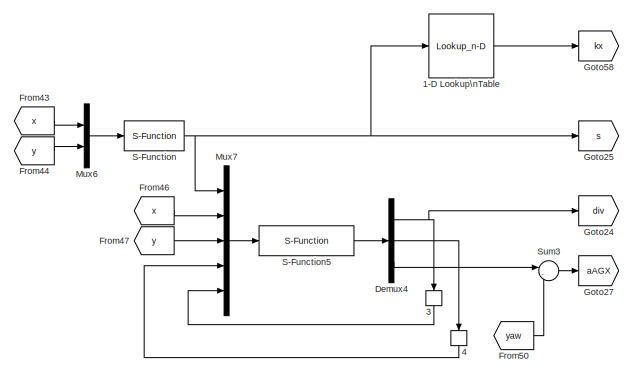
[diagram: root canvas - part 1/6, top center region]
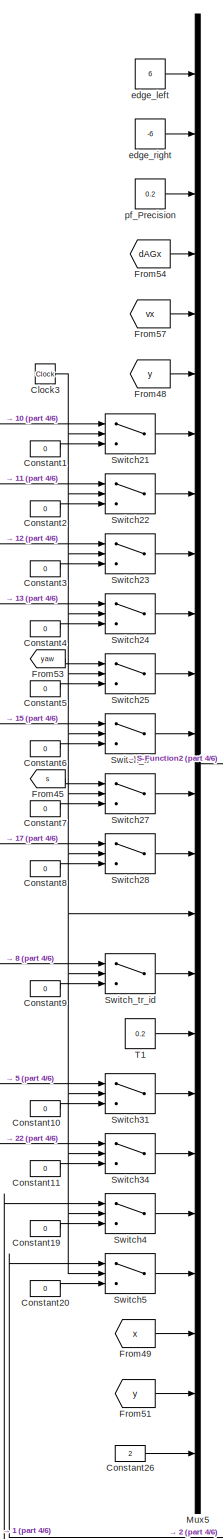
[diagram: root canvas - part 2/6, center side, full height]
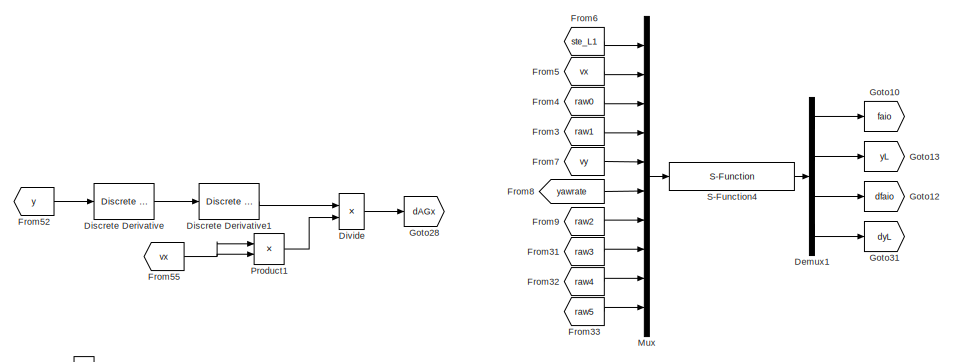
[diagram: root canvas - part 3/6, top left region]
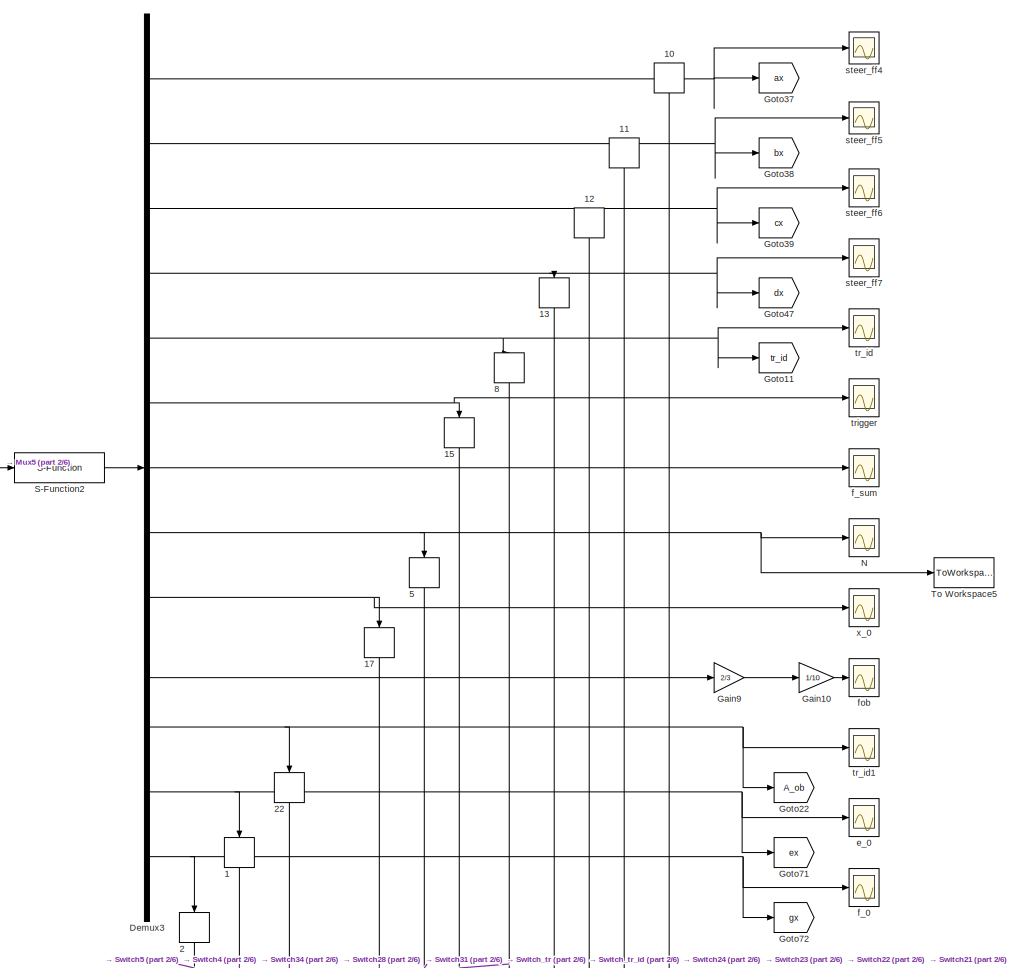
[diagram: root canvas - part 4/6, middle right region]
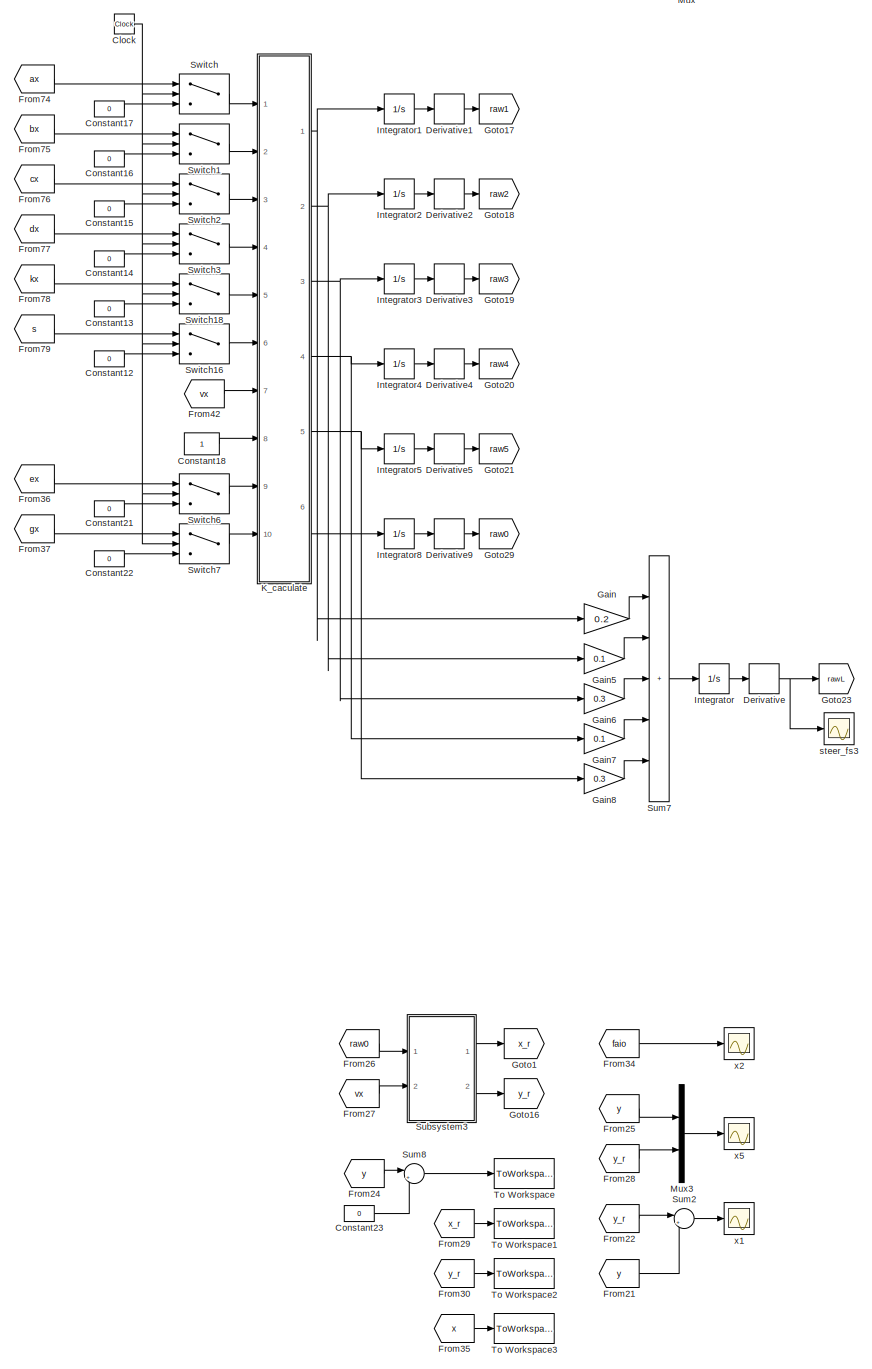
[diagram: root canvas - part 5/6, left side, full height]
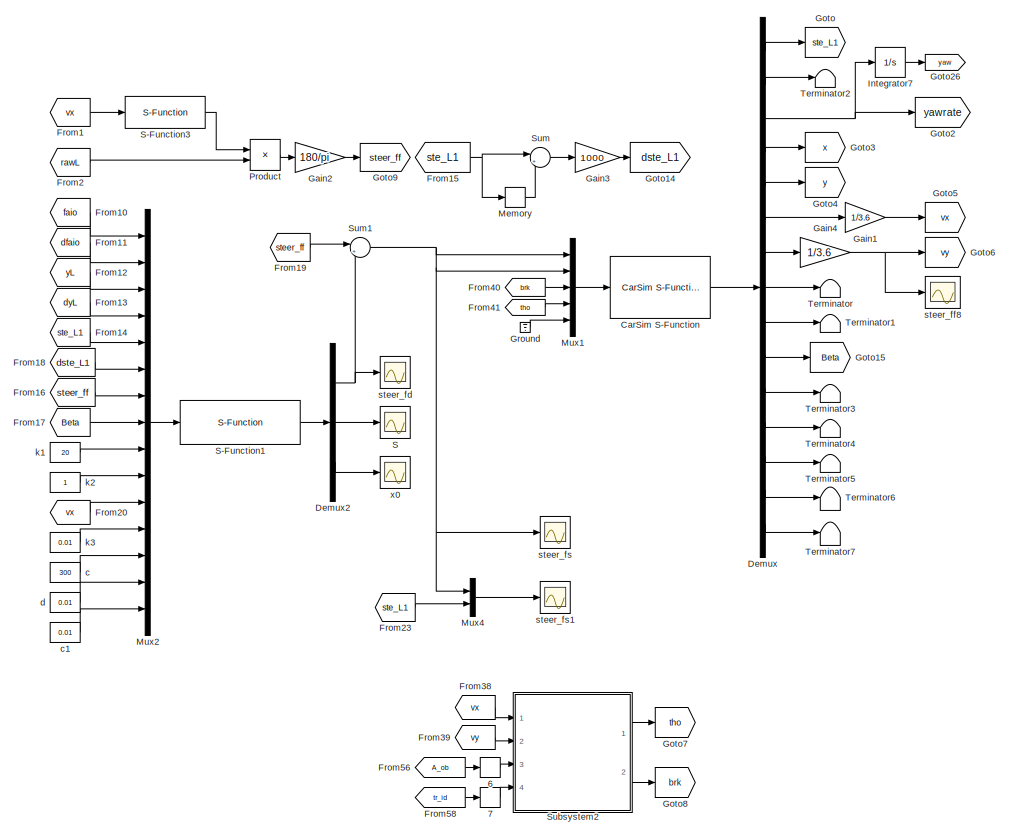
[diagram: root canvas - part 6/6, central region]
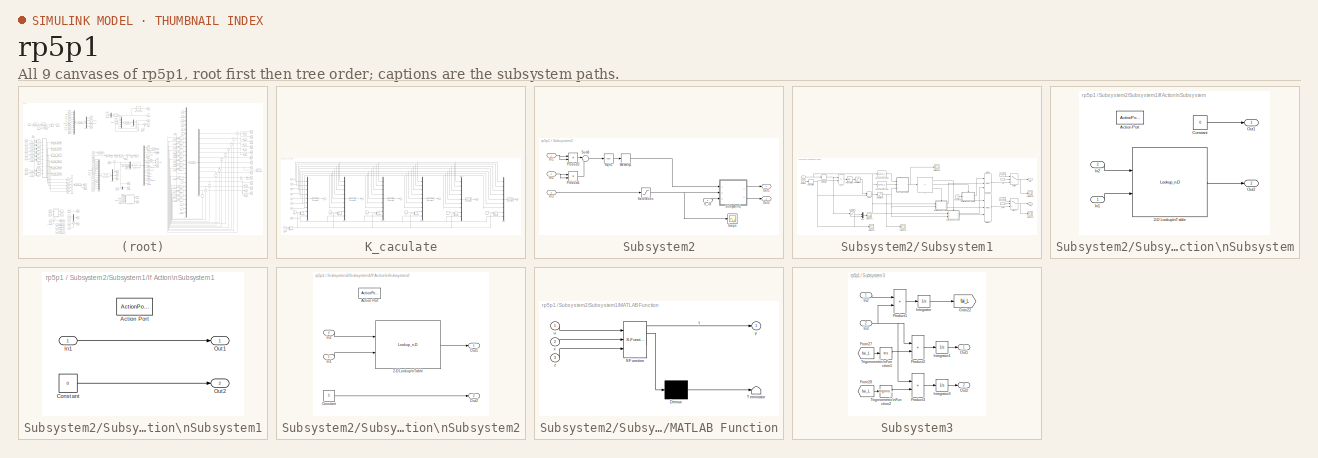
[diagram: thumbnail index - all 9 canvases of the model, root first then tree order]
MODEL rp5p1
KIND model
BLOCK [Memory] 1
  NameLocation = left
  SID = 869
BLOCK [Lookup_n-D] 1-D Lookup\nTable
  BreakpointsForDimension1 = xlsread('cos_road','sheet2','C2:C4002')
  InternalRulePriority = Speed
  NumberOfTableDimensions = 1
  Ports = [1, 1]
  RndMeth = Simplest
  SID = 914
  Table = xlsread('cos_road','sheet2','F2:F4002')
BLOCK [Memory] 10
  NameLocation = left
  SID = 676
BLOCK [Memory] 11
  NameLocation = left
  SID = 677
BLOCK [Memory] 12
  NameLocation = left
  SID = 678
BLOCK [Memory] 13
  NameLocation = left
  SID = 679
BLOCK [Memory] 15
  NameLocation = left
  SID = 681
BLOCK [Memory] 17
  NameLocation = left
  SID = 683
BLOCK [Memory] 2
  NameLocation = left
  SID = 870
BLOCK [Memory] 22
  NameLocation = left
  SID = 686
BLOCK [Memory] 3
  NameLocation = left
  SID = 906
BLOCK [Memory] 4
  NameLocation = left
  SID = 907
BLOCK [Memory] 5
  NameLocation = left
  SID = 1078
BLOCK [Memory] 6
  SID = 1045
BLOCK [Memory] 7
  SID = 1075
BLOCK [Memory] 8
  NameLocation = left
  SID = 1077
BLOCK [Reference] CarSim S-Function  REF=Solver_SF/CarSim S-Function
  AttributesFormatString = Vehicle Code: %<VehicleCode>
  MultiThreadCoSim = auto
  Ports = [1, 1]
  Priority = 1
  SID = 1093
  SIMFILE = simfile.sim
  SourceBlock = Solver_SF/CarSim S-Function
  SourceType = Vehicle math model library
  VehicleCode = i_i
BLOCK [Clock] Clock
  SID = 754
BLOCK [Clock] Clock3
  SID = 687
BLOCK [Constant] Constant1
  SID = 739
  Value = 0
BLOCK [Constant] Constant10
  SID = 748
  Value = 0
BLOCK [Constant] Constant11
  SID = 749
  Value = 0
BLOCK [Constant] Constant12
  SID = 820
  Value = 0
BLOCK [Constant] Constant13
  SID = 821
  Value = 0
BLOCK [Constant] Constant14
  SID = 822
  Value = 0
BLOCK [Constant] Constant15
  SID = 823
  Value = 0
BLOCK [Constant] Constant16
  SID = 824
  Value = 0
BLOCK [Constant] Constant17
  SID = 825
  Value = 0
BLOCK [Constant] Constant18
  SID = 826
BLOCK [Constant] Constant19
  SID = 866
  Value = 0
BLOCK [Constant] Constant2
  SID = 740
  Value = 0
BLOCK [Constant] Constant20
  SID = 867
  Value = 0
BLOCK [Constant] Constant21
  SID = 880
  Value = 0
BLOCK [Constant] Constant22
  SID = 883
  Value = 0
BLOCK [Constant] Constant23
  SID = 894
  Value = 0
BLOCK [Constant] Constant26
  SID = 955
  Value = 2
BLOCK [Constant] Constant3
  SID = 741
  Value = 0
BLOCK [Constant] Constant4
  SID = 742
  Value = 0
BLOCK [Constant] Constant5
  SID = 743
  Value = 0
BLOCK [Constant] Constant6
  SID = 744
  Value = 0
BLOCK [Constant] Constant7
  SID = 745
  Value = 0
BLOCK [Constant] Constant8
  SID = 746
  Value = 0
BLOCK [Constant] Constant9
  SID = 747
  Value = 0
BLOCK [Demux] Demux
  Outputs = 15
  Ports = [1, 15]
  SID = 6
BLOCK [Demux] Demux1
  Ports = [1, 4]
  SID = 58
BLOCK [Demux] Demux2
  Outputs = 3
  Ports = [1, 3]
  SID = 94
BLOCK [Demux] Demux3
  Outputs = 13
  Ports = [1, 13]
  SID = 688
BLOCK [Demux] Demux4
  Outputs = 3
  Ports = [1, 3]
  SID = 900
BLOCK [Derivative] Derivative
  SID = 841
BLOCK [Derivative] Derivative1
  SID = 842
BLOCK [Derivative] Derivative2
  SID = 844
BLOCK [Derivative] Derivative3
  SID = 846
BLOCK [Derivative] Derivative4
  SID = 848
BLOCK [Derivative] Derivative5
  SID = 850
BLOCK [Derivative] Derivative9
  SID = 980
BLOCK [Reference] Discrete Derivative  REF=simulink/Discrete/Discrete Derivative
  DoSatur = off
  ICPrevScaledInput = 0.0
  InputProcessing = Elements as channels (sample based)
  LockScale = off
  OutDataType = fixdt(1, 16)
  OutDataTypeStr = Inherit: Inherit via internal rule
  OutMax = []
  OutMin = []
  OutScaling = 2^-10
  OutputDataTypeScalingMode = Inherit via internal rule
  Ports = [1, 1]
  RTWMemSecDataConstants = Inherit from model
  RTWMemSecDataInternal = Inherit from model
  RTWMemSecDataParameters = Inherit from model
  RTWMemSecFuncExecute = Inherit from model
  RTWMemSecFuncInitTerm = Inherit from model
  RndMeth = Floor
  SID = 1027
  SourceBlock = simulink/Discrete/Discrete Derivative
  SourceProductBaseCode = SL
  SourceType = Discrete Derivative
  gainval = 1.0
BLOCK [Reference] Discrete Derivative1  REF=simulink/Discrete/Discrete Derivative
  DoSatur = off
  ICPrevScaledInput = 0.0
  InputProcessing = Elements as channels (sample based)
  LockScale = off
  OutDataType = fixdt(1, 16)
  OutDataTypeStr = Inherit: Inherit via internal rule
  OutMax = []
  OutMin = []
  OutScaling = 2^-10
  OutputDataTypeScalingMode = Inherit via internal rule
  Ports = [1, 1]
  RTWMemSecDataConstants = Inherit from model
  RTWMemSecDataInternal = Inherit from model
  RTWMemSecDataParameters = Inherit from model
  RTWMemSecFuncExecute = Inherit from model
  RTWMemSecFuncInitTerm = Inherit from model
  RndMeth = Floor
  SID = 1028
  SourceBlock = simulink/Discrete/Discrete Derivative
  SourceProductBaseCode = SL
  SourceType = Discrete Derivative
  gainval = 1.0
BLOCK [Product] Divide
  Inputs = */
  Ports = [2, 1]
  SID = 1029
BLOCK [From] From1
  GotoTag = vx
  SID = 40
BLOCK [From] From10
  GotoTag = faio
  SID = 64
BLOCK [From] From11
  GotoTag = dfaio
  SID = 65
BLOCK [From] From12
  GotoTag = yL
  SID = 66
BLOCK [From] From13
  GotoTag = dyL
  SID = 67
BLOCK [From] From14
  GotoTag = ste_L1
  SID = 68
BLOCK [From] From15
  GotoTag = ste_L1
  SID = 85
BLOCK [From] From16
  GotoTag = steer_ff
  SID = 70
BLOCK [From] From17
  GotoTag = Beta
  SID = 91
BLOCK [From] From18
  GotoTag = dste_L1
  SID = 89
BLOCK [From] From19
  GotoTag = steer_ff
  SID = 95
BLOCK [From] From2
  GotoTag = rawL
  SID = 42
BLOCK [From] From20
  GotoTag = vx
  SID = 74
BLOCK [From] From21
  GotoTag = y
  SID = 149
BLOCK [From] From22
  GotoTag = y_r
  SID = 150
BLOCK [From] From23
  GotoTag = ste_L1
  SID = 153
BLOCK [From] From24
  GotoTag = y
  SID = 161
BLOCK [From] From25
  GotoTag = y
  SID = 123
BLOCK [From] From26
  GotoTag = raw0
  SID = 143
BLOCK [From] From27
  GotoTag = vx
  SID = 144
BLOCK [From] From28
  GotoTag = y_r
  SID = 147
BLOCK [From] From29
  GotoTag = x_r
  SID = 162
BLOCK [From] From3
  GotoTag = raw1
  SID = 49
BLOCK [From] From30
  GotoTag = y_r
  SID = 164
BLOCK [From] From31
  GotoTag = raw3
  SID = 194
BLOCK [From] From32
  GotoTag = raw4
  SID = 195
BLOCK [From] From33
  GotoTag = raw5
  SID = 196
BLOCK [From] From34
  GotoTag = faio
  SID = 197
BLOCK [From] From35
  GotoTag = x
  SID = 203
BLOCK [From] From36
  GotoTag = ex
  SID = 881
BLOCK [From] From37
  GotoTag = gx
  SID = 884
BLOCK [From] From38
  GotoTag = vx
  SID = 399
BLOCK [From] From39
  GotoTag = vy
  SID = 400
BLOCK [From] From4
  GotoTag = raw0
  SID = 50
BLOCK [From] From40
  GotoTag = brk
  SID = 359
BLOCK [From] From41
  GotoTag = tho
  SID = 360
BLOCK [From] From42
  GotoTag = vx
  SID = 755
BLOCK [From] From43
  GotoTag = x
  SID = 886
BLOCK [From] From44
  GotoTag = y
  SID = 887
BLOCK [From] From45
  GotoTag = s
  SID = 891
BLOCK [From] From46
  GotoTag = x
  SID = 898
BLOCK [From] From47
  GotoTag = y
  SID = 899
BLOCK [From] From48
  GotoTag = y
  SID = 969
BLOCK [From] From49
  GotoTag = x
  SID = 967
BLOCK [From] From5
  GotoTag = vx
  SID = 51
BLOCK [From] From50
  GotoTag = yaw
  SID = 934
BLOCK [From] From51
  GotoTag = y
  SID = 968
BLOCK [From] From52
  GotoTag = y
  SID = 1004
BLOCK [From] From53
  GotoTag = yaw
  SID = 975
BLOCK [From] From54
  GotoTag = dAGx
  SID = 976
BLOCK [From] From55
  GotoTag = vx
  SID = 1030
BLOCK [From] From56
  GotoTag = A_ob
  SID = 1044
BLOCK [From] From57
  GotoTag = vx
  SID = 698
BLOCK [From] From58
  GotoTag = tr_id
  SID = 1074
BLOCK [From] From6
  GotoTag = ste_L1
  SID = 52
BLOCK [From] From7
  GotoTag = vy
  SID = 53
BLOCK [From] From74
  GotoTag = ax
  SID = 763
BLOCK [From] From75
  GotoTag = bx
  SID = 764
BLOCK [From] From76
  GotoTag = cx
  SID = 765
BLOCK [From] From77
  GotoTag = dx
  SID = 766
BLOCK [From] From78
  GotoTag = kx
  SID = 767
BLOCK [From] From79
  GotoTag = s
  SID = 768
BLOCK [From] From8
  GotoTag = yawrate
  SID = 54
BLOCK [From] From9
  GotoTag = raw2
  SID = 193
BLOCK [Gain] Gain
  Gain = 0.2
  SID = 833
BLOCK [Gain] Gain1
  Gain = 1/3.6
  SID = 117
BLOCK [Gain] Gain10
  Gain = 1/10
  SID = 1088
BLOCK [Gain] Gain2
  Gain = 180/pi
  SID = 93
BLOCK [Gain] Gain3
  Gain = 1000
  SID = 115
BLOCK [Gain] Gain4
  Gain = 1/3.6
  SID = 118
BLOCK [Gain] Gain5
  Gain = 0.1
  SID = 834
BLOCK [Gain] Gain6
  Gain = 0.3
  SID = 835
BLOCK [Gain] Gain7
  Gain = 0.1
  SID = 836
BLOCK [Gain] Gain8
  Gain = 0.3
  SID = 837
BLOCK [Gain] Gain9
  Gain = 2/3
  SID = 1087
BLOCK [Goto] Goto
  GotoTag = ste_L1
  SID = 21
BLOCK [Goto] Goto1
  GotoTag = x_r
  SID = 145
BLOCK [Goto] Goto10
  GotoTag = faio
  SID = 59
BLOCK [Goto] Goto11
  GotoTag = tr_id
  SID = 1063
BLOCK [Goto] Goto12
  GotoTag = dfaio
  SID = 61
BLOCK [Goto] Goto13
  GotoTag = yL
  SID = 1003
BLOCK [Goto] Goto14
  GotoTag = dste_L1
  SID = 88
BLOCK [Goto] Goto15
  GotoTag = Beta
  SID = 90
BLOCK [Goto] Goto16
  GotoTag = y_r
  SID = 146
BLOCK [Goto] Goto17
  GotoTag = raw1
  SID = 827
BLOCK [Goto] Goto18
  GotoTag = raw2
  SID = 828
BLOCK [Goto] Goto19
  GotoTag = raw3
  SID = 829
BLOCK [Goto] Goto2
  GotoTag = yawrate
  SID = 24
BLOCK [Goto] Goto20
  GotoTag = raw4
  SID = 830
BLOCK [Goto] Goto21
  GotoTag = raw5
  SID = 831
BLOCK [Goto] Goto22
  GotoTag = A_ob
  SID = 989
BLOCK [Goto] Goto23
  GotoTag = rawL
  SID = 839
BLOCK [Goto] Goto24
  GotoTag = div
  SID = 912
BLOCK [Goto] Goto25
  GotoTag = s
  SID = 904
BLOCK [Goto] Goto26
  GotoTag = yaw
  SID = 929
BLOCK [Goto] Goto27
  GotoTag = aAGX
  SID = 1091
BLOCK [Goto] Goto28
  GotoTag = dAGx
  SID = 974
BLOCK [Goto] Goto29
  GotoTag = raw0
  SID = 981
BLOCK [Goto] Goto3
  GotoTag = x
  SID = 26
BLOCK [Goto] Goto31
  GotoTag = dyL
  SID = 997
BLOCK [Goto] Goto37
  GotoTag = ax
  SID = 709
BLOCK [Goto] Goto38
  GotoTag = bx
  SID = 710
BLOCK [Goto] Goto39
  GotoTag = cx
  SID = 711
BLOCK [Goto] Goto4
  GotoTag = y
  SID = 27
BLOCK [Goto] Goto47
  GotoTag = dx
  SID = 712
BLOCK [Goto] Goto5
  GotoTag = vx
  SID = 28
BLOCK [Goto] Goto58
  GotoTag = kx
  SID = 716
BLOCK [Goto] Goto6
  GotoTag = vy
  SID = 29
BLOCK [Goto] Goto7
  GotoTag = tho
  SID = 401
BLOCK [Goto] Goto71
  GotoTag = ex
  SID = 720
BLOCK [Goto] Goto72
  GotoTag = gx
  SID = 721
BLOCK [Goto] Goto8
  GotoTag = brk
  SID = 402
BLOCK [Goto] Goto9
  GotoTag = steer_ff
  SID = 43
BLOCK [Ground] Ground
  SID = 1018
BLOCK [Integrator] Integrator
  Ports = [1, 1]
  SID = 840
BLOCK [Integrator] Integrator1
  Ports = [1, 1]
  SID = 843
BLOCK [Integrator] Integrator2
  Ports = [1, 1]
  SID = 845
BLOCK [Integrator] Integrator3
  Ports = [1, 1]
  SID = 847
BLOCK [Integrator] Integrator4
  Ports = [1, 1]
  SID = 849
BLOCK [Integrator] Integrator5
  Ports = [1, 1]
  SID = 851
BLOCK [Integrator] Integrator7
  Ports = [1, 1]
  SID = 927
BLOCK [Integrator] Integrator8
  Ports = [1, 1]
  SID = 982
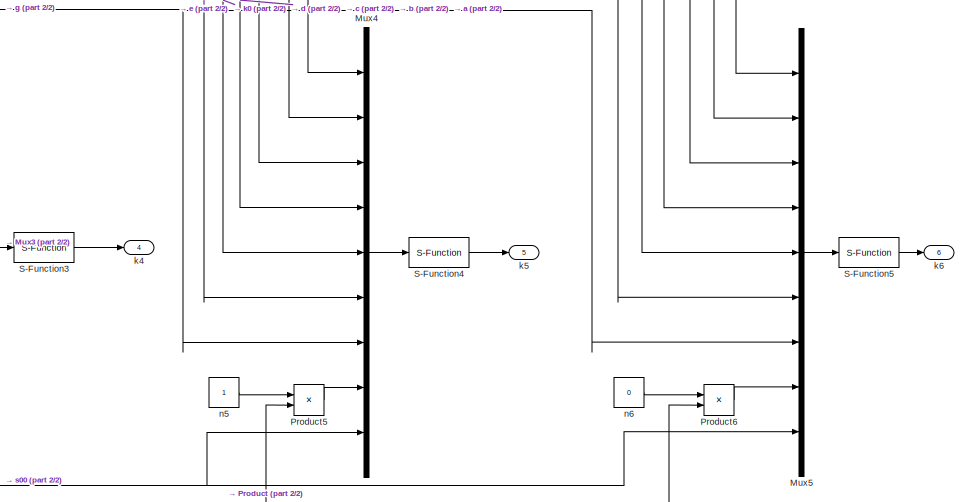
[diagram: K_caculate - part 1/2, middle right region]
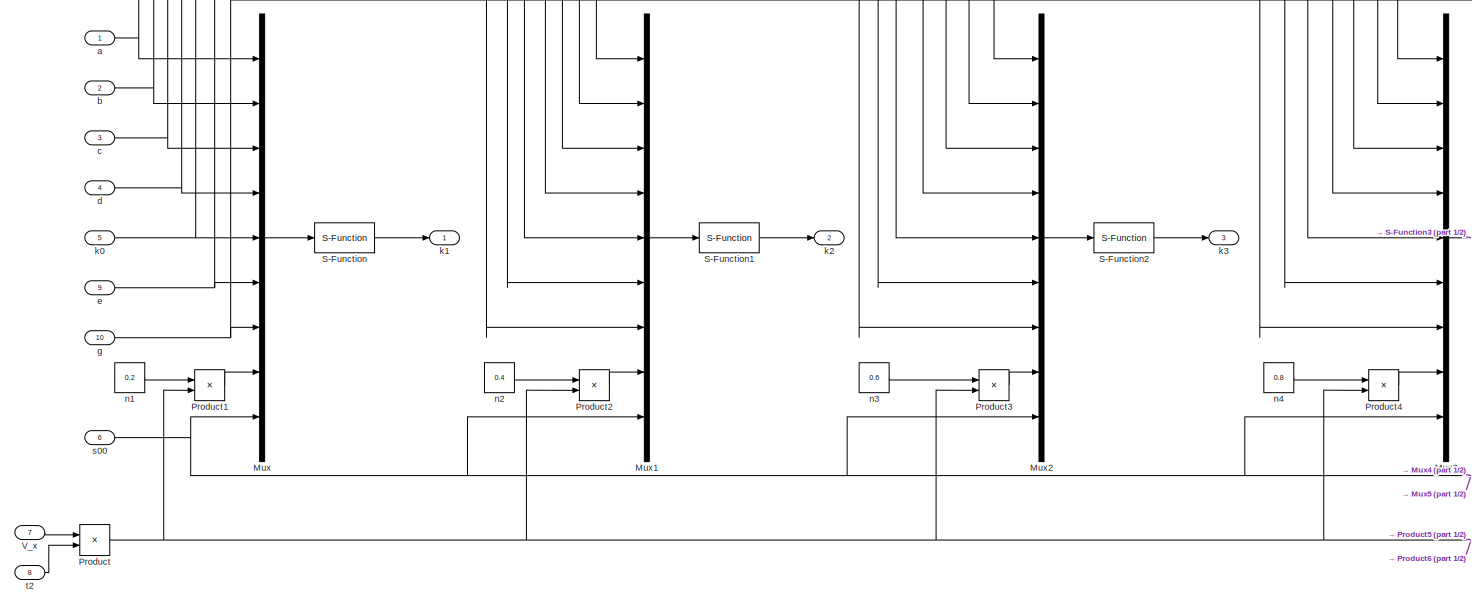
[diagram: K_caculate - part 2/2, left side, full height]
BLOCK [SubSystem] K_caculate
  Ports = [10, 6]
  RequestExecContextInheritance = off
  SID = 774
BLOCK [Mux] K_caculate/Mux
  DisplayOption = bar
  Inputs = 9
  Ports = [9, 1]
  SID = 788
BLOCK [Mux] K_caculate/Mux1
  DisplayOption = bar
  Inputs = 9
  Ports = [9, 1]
  SID = 789
BLOCK [Mux] K_caculate/Mux2
  DisplayOption = bar
  Inputs = 9
  Ports = [9, 1]
  SID = 790
BLOCK [Mux] K_caculate/Mux3
  DisplayOption = bar
  Inputs = 9
  Ports = [9, 1]
  SID = 791
BLOCK [Mux] K_caculate/Mux4
  DisplayOption = bar
  Inputs = 9
  Ports = [9, 1]
  SID = 792
BLOCK [Mux] K_caculate/Mux5
  DisplayOption = bar
  Inputs = 9
  Ports = [9, 1]
  SID = 985
BLOCK [Product] K_caculate/Product
  Ports = [2, 1]
  SID = 793
BLOCK [Product] K_caculate/Product1
  Ports = [2, 1]
  SID = 794
BLOCK [Product] K_caculate/Product2
  Ports = [2, 1]
  SID = 795
BLOCK [Product] K_caculate/Product3
  Ports = [2, 1]
  SID = 796
BLOCK [Product] K_caculate/Product4
  Ports = [2, 1]
  SID = 797
BLOCK [Product] K_caculate/Product5
  Ports = [2, 1]
  SID = 798
BLOCK [Product] K_caculate/Product6
  Ports = [2, 1]
  SID = 987
BLOCK [S-Function] K_caculate/S-Function
  EnableBusSupport = off
  FunctionName = K_caculate_2
  Ports = [1, 1]
  SFcnIsStateOwnerBlock = off
  SFunctionDeploymentMode = off
  SID = 799
BLOCK [S-Function] K_caculate/S-Function1
  EnableBusSupport = off
  FunctionName = K_caculate_2
  Ports = [1, 1]
  SFcnIsStateOwnerBlock = off
  SFunctionDeploymentMode = off
  SID = 800
BLOCK [S-Function] K_caculate/S-Function2
  EnableBusSupport = off
  FunctionName = K_caculate_2
  Ports = [1, 1]
  SFcnIsStateOwnerBlock = off
  SFunctionDeploymentMode = off
  SID = 801
BLOCK [S-Function] K_caculate/S-Function3
  EnableBusSupport = off
  FunctionName = K_caculate_2
  Ports = [1, 1]
  SFcnIsStateOwnerBlock = off
  SFunctionDeploymentMode = off
  SID = 802
BLOCK [S-Function] K_caculate/S-Function4
  EnableBusSupport = off
  FunctionName = K_caculate_2
  Ports = [1, 1]
  SFcnIsStateOwnerBlock = off
  SFunctionDeploymentMode = off
  SID = 803
BLOCK [S-Function] K_caculate/S-Function5
  EnableBusSupport = off
  FunctionName = K_caculate_2
  Ports = [1, 1]
  SFcnIsStateOwnerBlock = off
  SFunctionDeploymentMode = off
  SID = 984
BLOCK [Inport] K_caculate/V_x
  Port = 7
  SID = 781
BLOCK [Inport] K_caculate/a
  SID = 775
BLOCK [Inport] K_caculate/b
  Port = 2
  SID = 776
BLOCK [Inport] K_caculate/c
  Port = 3
  SID = 777
BLOCK [Inport] K_caculate/d
  Port = 4
  SID = 778
BLOCK [Inport] K_caculate/e
  Port = 9
  SID = 872
BLOCK [Inport] K_caculate/g
  Port = 10
  SID = 873
BLOCK [Inport] K_caculate/k0
  Port = 5
  SID = 779
BLOCK [Outport] K_caculate/k1
  SID = 809
  VectorParamsAs1DForOutWhenUnconnected = off
BLOCK [Outport] K_caculate/k2
  Port = 2
  SID = 810
  VectorParamsAs1DForOutWhenUnconnected = off
BLOCK [Outport] K_caculate/k3
  Port = 3
  SID = 811
  VectorParamsAs1DForOutWhenUnconnected = off
BLOCK [Outport] K_caculate/k4
  Port = 4
  SID = 812
  VectorParamsAs1DForOutWhenUnconnected = off
BLOCK [Outport] K_caculate/k5
  Port = 5
  SID = 813
  VectorParamsAs1DForOutWhenUnconnected = off
BLOCK [Outport] K_caculate/k6
  Port = 6
  SID = 983
  VectorParamsAs1DForOutWhenUnconnected = off
BLOCK [Constant] K_caculate/n1
  SID = 804
  Value = 0.2
BLOCK [Constant] K_caculate/n2
  SID = 805
  Value = 0.4
BLOCK [Constant] K_caculate/n3
  SID = 806
  Value = 0.6
BLOCK [Constant] K_caculate/n4
  SID = 807
  Value = 0.8
BLOCK [Constant] K_caculate/n5
  SID = 808
BLOCK [Constant] K_caculate/n6
  SID = 986
  Value = 0
BLOCK [Inport] K_caculate/s00
  Port = 6
  SID = 780
BLOCK [Inport] K_caculate/t2
  Port = 8
  SID = 782
BLOCK [Memory] Memory
  SID = 86
BLOCK [Mux] Mux
  DisplayOption = bar
  Inputs = 10
  Ports = [10, 1]
  SID = 45
BLOCK [Mux] Mux1
  DisplayOption = bar
  Inputs = 5
  Ports = [5, 1]
  SID = 46
BLOCK [Mux] Mux2
  DisplayOption = bar
  Inputs = 15
  Ports = [15, 1]
  SID = 63
BLOCK [Mux] Mux3
  DisplayOption = bar
  Inputs = 2
  Ports = [2, 1]
  SID = 151
BLOCK [Mux] Mux4
  DisplayOption = bar
  Inputs = 2
  Ports = [2, 1]
  SID = 154
BLOCK [Mux] Mux5
  DisplayOption = bar
  Inputs = 24
  Ports = [24, 1]
  SID = 722
BLOCK [Mux] Mux6
  DisplayOption = bar
  Inputs = 2
  Ports = [2, 1]
  SID = 888
BLOCK [Mux] Mux7
  DisplayOption = bar
  Inputs = 5
  Ports = [5, 1]
  SID = 897
BLOCK [Scope] N
  Floating = off
  NumInputPorts = 1
  Ports = [1]
  SID = 959
  ScopeSpecificationString = Simulink.scopes.TimeScopeBlockCfg('CurrentConfiguration', extmgr.ConfigurationSet(extmgr.Configuration('Core','General UI',true,'FigureColor',[1 1 1]),extmgr.Configuration('Core','Source UI',true),extmgr.Configuration('Sources','WiredSimulink',true,'DataLoggingVariableName','ScopeData3'),extmgr.Configuration('Visuals','Time Domain',true,'SerializedDisplays',{struct('MinYLimReal','-7.625','MaxYLimR...<+1558ch>
BLOCK [Product] Product
  Ports = [2, 1]
  SID = 41
BLOCK [Product] Product1
  Ports = [2, 1]
  SID = 1031
BLOCK [Scope] S
  Floating = off
  NumInputPorts = 1
  Ports = [1]
  SID = 99
  ScopeSpecificationString = Simulink.scopes.TimeScopeBlockCfg('CurrentConfiguration', extmgr.ConfigurationSet(extmgr.Configuration('Core','General UI',true),extmgr.Configuration('Core','Source UI',true),extmgr.Configuration('Sources','WiredSimulink',true,'DataLoggingVariableName','ScopeData1'),extmgr.Configuration('Visuals','Time Domain',true,'SerializedDisplays',{struct('MinYLimReal','-106.26839','MaxYLimReal','11.80789','Y...<+1379ch>
BLOCK [S-Function] S-Function
  EnableBusSupport = off
  FunctionName = findpoint2
  Parameters = path_data_2
  Ports = [1, 1]
  SFcnIsStateOwnerBlock = off
  SFunctionDeploymentMode = off
  SID = 889
BLOCK [S-Function] S-Function1
  EnableBusSupport = off
  FunctionName = steer_slid_mode_c
  Ports = [1, 1]
  SFcnIsStateOwnerBlock = off
  SFunctionDeploymentMode = off
  SID = 48
BLOCK [S-Function] S-Function2
  EnableBusSupport = off
  FunctionName = path_choose_2
  Parameters = path_data_2
  Ports = [1, 1]
  SFcnIsStateOwnerBlock = off
  SFunctionDeploymentMode = off
  SID = 723
BLOCK [S-Function] S-Function3
  EnableBusSupport = off
  FunctionName = ff_control
  Ports = [1, 1]
  SFcnIsStateOwnerBlock = off
  SFunctionDeploymentMode = off
  SID = 47
BLOCK [S-Function] S-Function4
  EnableBusSupport = off
  FunctionName = vehicle_model_multipoint
  Ports = [1, 1]
  SFcnIsStateOwnerBlock = off
  SFunctionDeploymentMode = off
  SID = 177
BLOCK [S-Function] S-Function5
  EnableBusSupport = off
  FunctionName = diviation_caculate
  Parameters = path_data_2
  Ports = [1, 1]
  SFcnIsStateOwnerBlock = off
  SFunctionDeploymentMode = off
  SID = 896
BLOCK [SubSystem] Subsystem2
  Ports = [4, 2]
  RequestExecContextInheritance = off
  SID = 403
BLOCK [Inport] Subsystem2/In1
  SID = 404
BLOCK [Inport] Subsystem2/In2
  Port = 2
  SID = 405
BLOCK [Inport] Subsystem2/In3
  Port = 3
  SID = 1042
BLOCK [Memory] Subsystem2/Memory1
  SID = 408
BLOCK [Outport] Subsystem2/Out1
  SID = 466
  VectorParamsAs1DForOutWhenUnconnected = off
BLOCK [Outport] Subsystem2/Out2
  Port = 2
  SID = 467
  VectorParamsAs1DForOutWhenUnconnected = off
BLOCK [Product] Subsystem2/Product3
  Ports = [2, 1]
  SID = 411
BLOCK [Product] Subsystem2/Product4
  Ports = [2, 1]
  SID = 412
BLOCK [Saturate] Subsystem2/Saturation
  LowerLimit = -5
  SID = 1055
  UpperLimit = 5
BLOCK [Scope] Subsystem2/Scope
  Floating = off
  NumInputPorts = 1
  Ports = [1]
  SID = 1054
  ScopeSpecificationString = Simulink.scopes.TimeScopeBlockCfg('CurrentConfiguration', extmgr.ConfigurationSet(extmgr.Configuration('Core','General UI',true),extmgr.Configuration('Core','Source UI',true),extmgr.Configuration('Sources','WiredSimulink',true,'DataLoggingVariableName','ScopeData1'),extmgr.Configuration('Visuals','Time Domain',true,'SerializedDisplays',{struct('MinYLimReal','-6.09286','MaxYLimReal','4.83571','YLab...<+1369ch>
BLOCK [Sqrt] Subsystem2/Sqrt1
  SID = 415
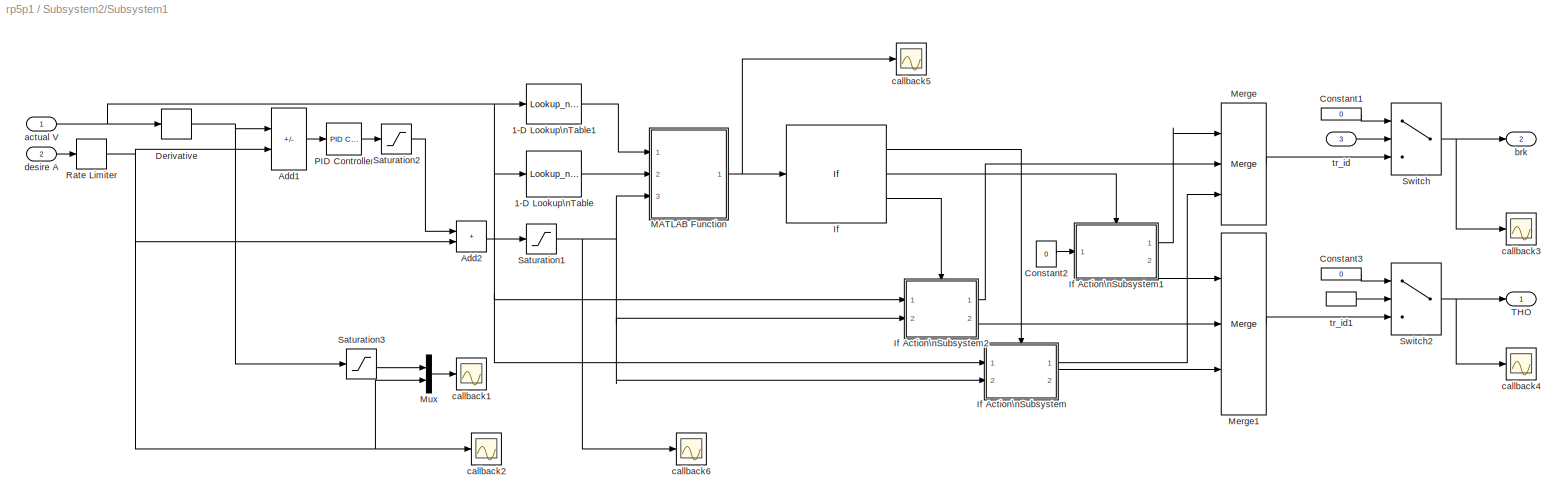
BLOCK [SubSystem] Subsystem2/Subsystem1
  Ports = [3, 2]
  RequestExecContextInheritance = off
  SID = 416
BLOCK [Lookup_n-D] Subsystem2/Subsystem1/1-D Lookup\nTable
  BreakpointsForDimension1 = xlsread('tho0brk0','sheet4','A2:A16')
  InternalRulePriority = Speed
  NumberOfTableDimensions = 1
  Ports = [1, 1]
  RndMeth = Simplest
  SID = 419
  Table = xlsread('tho0brk0','sheet4','B2:B16')
BLOCK [Lookup_n-D] Subsystem2/Subsystem1/1-D Lookup\nTable1
  BreakpointsForDimension1 = xlsread('tho0brk0','sheet3','A2:A29')
  InternalRulePriority = Speed
  NumberOfTableDimensions = 1
  Ports = [1, 1]
  RndMeth = Simplest
  SID = 420
  Table = xlsread('tho0brk0','sheet3','B2:B29')
BLOCK [Sum] Subsystem2/Subsystem1/Add1
  IconShape = rectangular
  Inputs = -+
  Ports = [2, 1]
  SID = 421
BLOCK [Sum] Subsystem2/Subsystem1/Add2
  IconShape = rectangular
  Ports = [2, 1]
  SID = 422
BLOCK [Constant] Subsystem2/Subsystem1/Constant1
  SID = 1068
  Value = 0
BLOCK [Constant] Subsystem2/Subsystem1/Constant2
  SID = 423
  Value = 0
BLOCK [Constant] Subsystem2/Subsystem1/Constant3
  SID = 1069
  Value = 0
BLOCK [Derivative] Subsystem2/Subsystem1/Derivative
  SID = 424
BLOCK [If] Subsystem2/Subsystem1/If
  ElseIfExpressions = u1 ==0
  Ports = [1, 3]
  SID = 425
BLOCK [SubSystem] Subsystem2/Subsystem1/If Action\nSubsystem
  Ports = [2, 2, 0, 0, 0, 0, 0, 1]
  RequestExecContextInheritance = off
  SID = 426
  TreatAsAtomicUnit = on
BLOCK [Lookup_n-D] Subsystem2/Subsystem1/If Action\nSubsystem/2-D Lookup\nTable
  BreakpointsForDimension1 = xlsread('tho-v-a','sheet4','A3:A38')
  BreakpointsForDimension2 = xlsread('tho-v-a','sheet4','B2:P2')
  InternalRulePriority = Speed
  Ports = [2, 1]
  RndMeth = Simplest
  SID = 430
  Table = xlsread('tho-v-a','sheet4','B3:P38')
BLOCK [ActionPort] Subsystem2/Subsystem1/If Action\nSubsystem/Action Port
  ActionPortLabel = if { }
  SID = 429
BLOCK [Constant] Subsystem2/Subsystem1/If Action\nSubsystem/Constant
  SID = 431
  Value = 0
BLOCK [Inport] Subsystem2/Subsystem1/If Action\nSubsystem/In1
  SID = 427
BLOCK [Inport] Subsystem2/Subsystem1/If Action\nSubsystem/In2
  Port = 2
  SID = 428
BLOCK [Outport] Subsystem2/Subsystem1/If Action\nSubsystem/Out1
  SID = 432
  VectorParamsAs1DForOutWhenUnconnected = off
BLOCK [Outport] Subsystem2/Subsystem1/If Action\nSubsystem/Out2
  Port = 2
  SID = 433
  VectorParamsAs1DForOutWhenUnconnected = off
BLOCK [SubSystem] Subsystem2/Subsystem1/If Action\nSubsystem1
  Ports = [1, 2, 0, 0, 0, 0, 0, 1]
  RequestExecContextInheritance = off
  SID = 434
  TreatAsAtomicUnit = on
BLOCK [ActionPort] Subsystem2/Subsystem1/If Action\nSubsystem1/Action Port
  ActionPortLabel = elseif { }
  SID = 436
BLOCK [Constant] Subsystem2/Subsystem1/If Action\nSubsystem1/Constant
  SID = 437
  Value = 0
BLOCK [Inport] Subsystem2/Subsystem1/If Action\nSubsystem1/In1
  SID = 435
BLOCK [Outport] Subsystem2/Subsystem1/If Action\nSubsystem1/Out1
  SID = 438
  VectorParamsAs1DForOutWhenUnconnected = off
BLOCK [Outport] Subsystem2/Subsystem1/If Action\nSubsystem1/Out2
  Port = 2
  SID = 439
  VectorParamsAs1DForOutWhenUnconnected = off
BLOCK [SubSystem] Subsystem2/Subsystem1/If Action\nSubsystem2
  Ports = [2, 2, 0, 0, 0, 0, 0, 1]
  RequestExecContextInheritance = off
  SID = 440
  TreatAsAtomicUnit = on
BLOCK [Lookup_n-D] Subsystem2/Subsystem1/If Action\nSubsystem2/2-D Lookup\nTable
  BreakpointsForDimension1 = xlsread('brk-v-a','sheet3','A3:A28')
  BreakpointsForDimension2 = xlsread('brk-v-a','sheet3','B2:P2')
  InternalRulePriority = Speed
  Ports = [2, 1]
  RndMeth = Simplest
  SID = 444
  Table = xlsread('brk-v-a','sheet3','B3:P28')
BLOCK [ActionPort] Subsystem2/Subsystem1/If Action\nSubsystem2/Action Port
  ActionPortLabel = else { }
  SID = 443
BLOCK [Constant] Subsystem2/Subsystem1/If Action\nSubsystem2/Constant
  SID = 445
  Value = 0
BLOCK [Inport] Subsystem2/Subsystem1/If Action\nSubsystem2/In1
  SID = 441
BLOCK [Inport] Subsystem2/Subsystem1/If Action\nSubsystem2/In2
  Port = 2
  SID = 442
BLOCK [Outport] Subsystem2/Subsystem1/If Action\nSubsystem2/Out1
  SID = 446
  VectorParamsAs1DForOutWhenUnconnected = off
BLOCK [Outport] Subsystem2/Subsystem1/If Action\nSubsystem2/Out2
  Port = 2
  SID = 447
  VectorParamsAs1DForOutWhenUnconnected = off
BLOCK [SubSystem] Subsystem2/Subsystem1/MATLAB Function
  ErrorFcn = Stateflow.Translate.translate
  PermitHierarchicalResolution = ExplicitOnly
  Ports = [3, 1]
  RequestExecContextInheritance = off
  SFBlockType = MATLAB Function
  SID = 448
  TreatAsAtomicUnit = on
BLOCK [Demux] Subsystem2/Subsystem1/MATLAB Function/ Demux 
  Outputs = 1
  Ports = [1, 1]
  SID = 448::27
BLOCK [S-Function] Subsystem2/Subsystem1/MATLAB Function/ SFunction 
  EnableBusSupport = on
  FunctionName = sf_sfun
  PortCounts = [3 2]
  Ports = [3, 2]
  SFcnIsStateOwnerBlock = off
  SFunctionDeploymentMode = off
  SID = 448::26
  Tag = Stateflow S-Function 3
BLOCK [Terminator] Subsystem2/Subsystem1/MATLAB Function/ Terminator 
  SID = 448::28
BLOCK [Inport] Subsystem2/Subsystem1/MATLAB Function/u
  SID = 448::1
BLOCK [Inport] Subsystem2/Subsystem1/MATLAB Function/x
  Port = 2
  SID = 448::22
BLOCK [Outport] Subsystem2/Subsystem1/MATLAB Function/y
  SID = 448::5
  VectorParamsAs1DForOutWhenUnconnected = off
BLOCK [Inport] Subsystem2/Subsystem1/MATLAB Function/z
  Port = 3
  SID = 448::25
BLOCK [Merge] Subsystem2/Subsystem1/Merge
  Inputs = 3
  Ports = [3, 1]
  SID = 450
BLOCK [Merge] Subsystem2/Subsystem1/Merge1
  Inputs = 3
  Ports = [3, 1]
  SID = 451
BLOCK [Mux] Subsystem2/Subsystem1/Mux
  DisplayOption = bar
  Inputs = 2
  Ports = [2, 1]
  SID = 1084
BLOCK [Reference] Subsystem2/Subsystem1/PID Controller  REF=simulink/Continuous/PID Controller
  AWVariant = Passthrough
  AntiWindupMode = none
  Controller = PID
  ControllerParametersSource = internal
  D = 0.005
  DGainOutDataTypeStr = Inherit: Inherit via internal rule
  DOutMax = []
  DOutMin = []
  DParamDataTypeStr = Inherit: Inherit via internal rule
  DParamMax = []
  DParamMin = []
  DProdOutDataTypeStr = Inherit: Inherit via internal rule
  DVariant = InternalParameters
  DerivativeFilterVariant = ContFilter
  DifferentiatorICPrevScaledInput = 0
  DifferentiatorOutDataTypeStr = Inherit: Inherit via internal rule
  DifferentiatorOutMax = []
  DifferentiatorOutMin = []
  DivideOutDataTypeStr = Inherit: Inherit via internal rule
  DivideOutMax = []
  DivideOutMin = []
  ExternalReset = none
  ExternalResetVariant = Disabled
  FdbkBlocksVariant = Forward
  FilterContinuousStateAttributes = ''
  FilterDiffDenAccumDataTypeStr = Inherit: Inherit via internal rule
  FilterDiffDenProductOutputDataTypeStr = Inherit: Inherit via internal rule
  FilterDiffNumAccumDataTypeStr = Inherit: Inherit via internal rule
  FilterDiffNumProductOutputDataTypeStr = Inherit: Inherit via internal rule
  FilterDiffOutCoefDataTypeStr = Inherit: Inherit via internal rule
  FilterDiffOutCoefMax = []
  FilterDiffOutCoefMin = []
  FilterICVariant = InternalICsFilter
  FilterMethod = Forward Euler
  FilterOutDataTypeStr = Inherit: Inherit via internal rule
  FilterOutMax = []
  FilterOutMin = []
  FilterRTWStateStorageClass = Auto
  FilterStateMustResolveToSignalObject = off
  Form = Parallel
  I = 0.01
  IGainOutDataTypeStr = Inherit: Inherit via internal rule
  IOutMax = []
  IOutMin = []
  IParamDataTypeStr = Inherit: Inherit via internal rule
  IParamMax = []
  IParamMin = []
  IProdOutDataTypeStr = Inherit: Inherit via internal rule
  IVariant = InternalParameters
  IdealPFdbkVariant = Disabled
  IdealPVariant = Disabled
  IgnoreLimit = off
  InitialConditionForFilter = 0
  InitialConditionForIntegrator = 0
  InitialConditionSetting = Auto
  InitialConditionSource = internal
  IntegratorContinuousStateAttributes = ''
  IntegratorICVariant = InternalICs
  IntegratorMethod = Forward Euler
  IntegratorOutDataTypeStr = Inherit: Inherit via internal rule
  IntegratorOutMax = []
  IntegratorOutMin = []
  IntegratorRTWStateStorageClass = Auto
  IntegratorStateMustResolveToSignalObject = off
  IntegratorVariant = Continuous
  Kb = 1
  KbOutDataTypeStr = Inherit: Inherit via internal rule
  KbOutMax = []
  KbOutMin = []
  KbParamDataTypeStr = Inherit: Inherit via internal rule
  KbParamMax = []
  KbParamMin = []
  Kt = 1
  KtOutDataTypeStr = Inherit: Inherit via internal rule
  KtOutMax = []
  KtOutMin = []
  KtParamDataTypeStr = Inherit: Inherit via internal rule
  KtParamMax = []
  KtParamMin = []
  LimitOutput = off
  LinearizeAsGain = on
  LockScale = off
  LowerSaturationLimit = -inf
  N = 100
  NCopyVariant = Disabled
  NGainOutDataTypeStr = Inherit: Inherit via internal rule
  NOutMax = []
  NOutMin = []
  NParamDataTypeStr = Inherit: Inherit via internal rule
  NParamMax = []
  NParamMin = []
  NProdOutDataTypeStr = Inherit: Inherit via internal rule
  NTsProdOutDataTypeStr = Inherit: Inherit via internal rule
  NTsProdOutMax = []
  NTsProdOutMin = []
  NVariant = InternalParameters
  P = 5
  PCopyVariant = Disabled
  PGainOutDataTypeStr = Inherit: Inherit via internal rule
  POutMax = []
  POutMin = []
  PParamDataTypeStr = Inherit: Inherit via internal rule
  PParamMax = []
  PParamMin = []
  PProdOutDataTypeStr = Inherit: Inherit via internal rule
  ParallelPVariant = InternalParameters
  Ports = [1, 1]
  RTWMemSecDataConstants = Inherit from model
  RTWMemSecDataInternal = Inherit from model
  RTWMemSecDataParameters = Inherit from model
  RTWMemSecFuncExecute = Inherit from model
  RTWMemSecFuncInitTerm = Inherit from model
  ReciprocalOutDataTypeStr = Inherit: Inherit via internal rule
  ReciprocalOutMax = []
  ReciprocalOutMin = []
  RndMeth = Floor
  SID = 1061
  SampleTime = -1
  SatFdbkVariant = Disabled
  SatVariant = Disabled
  SaturateOnIntegerOverflow = off
  SaturationOutDataTypeStr = Inherit: Same as input
  SaturationOutMax = []
  SaturationOutMin = []
  SourceBlock = simulink/Continuous/PID Controller
  SourceProductBaseCode = SL
  SourceType = PID 1dof
  SumAccumDataTypeStr = Inherit: Inherit via internal rule
  SumDAccumDataTypeStr = Inherit: Inherit via internal rule
  SumDOutDataTypeStr = Inherit: Inherit via internal rule
  SumDOutMax = []
  SumDOutMin = []
  SumDenAccumDataTypeStr = Inherit: Inherit via internal rule
  SumDenOutDataTypeStr = Inherit: Inherit via internal rule
  SumDenOutMax = []
  SumDenOutMin = []
  SumFdbkVariant = Disabled
  SumI1AccumDataTypeStr = Inherit: Inherit via internal rule
  SumI1OutDataTypeStr = Inherit: Inherit via internal rule
  SumI1OutMax = []
  SumI1OutMin = []
  SumI2AccumDataTypeStr = Inherit: Inherit via internal rule
  SumI2OutDataTypeStr = Inherit: Inherit via internal rule
  SumI2OutMax = []
  SumI2OutMin = []
  SumI3AccumDataTypeStr = Inherit: Inherit via internal rule
  SumI3OutDataTypeStr = Inherit: Inherit via internal rule
  SumI3OutMax = []
  SumI3OutMin = []
  SumI4AccumDataTypeStr = Inherit: Inherit via internal rule
  SumI4OutDataTypeStr = Inherit: Inherit via internal rule
  SumI4OutMax = []
  SumI4OutMin = []
  SumNumAccumDataTypeStr = Inherit: Inherit via internal rule
  SumNumOutDataTypeStr = Inherit: Inherit via internal rule
  SumNumOutMax = []
  SumNumOutMin = []
  SumOutDataTypeStr = Inherit: Inherit via internal rule
  SumOutMax = []
  SumOutMin = []
  SumVariant = Sum_PID
  TRSumVariant = Passthrough
  TRVariant = Disabled
  TimeDomain = Continuous-time
  TrackingMode = off
  TsampFilterVariant = InternalTs
  TsampIntegralVariant = Passthrough
  TsampNgainVariant = Passthrough
  TunerSelectOption = Transfer Function Based (PID Tuner App)
  UdiffTsProdOutDataTypeStr = Inherit: Inherit via internal rule
  UdiffTsProdOutMax = []
  UdiffTsProdOutMin = []
  UintegralTsProdOutDataTypeStr = Inherit: Inherit via internal rule
  UintegralTsProdOutMax = []
  UintegralTsProdOutMin = []
  UngainTsProdOutDataTypeStr = Inherit: Inherit via internal rule
  UngainTsProdOutMax = []
  UngainTsProdOutMin = []
  UpperSaturationLimit = inf
  UseExternalTs = off
  UseFilter = on
  ZeroCross = on
BLOCK [RateLimiter] Subsystem2/Subsystem1/Rate Limiter
  FallingSlewLimit = -5
  RisingSlewLimit = 5
  SID = 454
  SampleTimeMode = inherited
BLOCK [Saturate] Subsystem2/Subsystem1/Saturation1
  LowerLimit = -5
  SID = 455
  UpperLimit = 5.4
BLOCK [Saturate] Subsystem2/Subsystem1/Saturation2
  LowerLimit = -5
  SID = 1062
  UpperLimit = 5.4
BLOCK [Saturate] Subsystem2/Subsystem1/Saturation3
  LowerLimit = -5
  SID = 1083
  UpperLimit = 5.4
BLOCK [Switch] Subsystem2/Subsystem1/Switch
  Criteria = u2 ~= 0
  InputSameDT = off
  SID = 1066
  SaturateOnIntegerOverflow = off
BLOCK [Switch] Subsystem2/Subsystem1/Switch2
  Criteria = u2 ~= 0
  InputSameDT = off
  SID = 1073
  SaturateOnIntegerOverflow = off
BLOCK [Outport] Subsystem2/Subsystem1/THO
  SID = 458
  VectorParamsAs1DForOutWhenUnconnected = off
BLOCK [Inport] Subsystem2/Subsystem1/actual V
  SID = 417
BLOCK [Outport] Subsystem2/Subsystem1/brk
  Port = 2
  SID = 459
  VectorParamsAs1DForOutWhenUnconnected = off
BLOCK [Scope] Subsystem2/Subsystem1/callback1
  Floating = off
  NumInputPorts = 1
  Ports = [1]
  SID = 457
  ScopeSpecificationString = Simulink.scopes.TimeScopeBlockCfg('CurrentConfiguration', extmgr.ConfigurationSet(extmgr.Configuration('Core','General UI',true,'FigureColor',[1 1 1]),extmgr.Configuration('Core','Source UI',true),extmgr.Configuration('Sources','WiredSimulink',true,'DataLoggingVariableName','ScopeData6'),extmgr.Configuration('Visuals','Time Domain',true,'SerializedDisplays',{struct('MinYLimReal','-5.77115','MaxYLi...<+1669ch>
BLOCK [Scope] Subsystem2/Subsystem1/callback2
  Floating = off
  NumInputPorts = 1
  Ports = [1]
  SID = 468
  ScopeSpecificationString = Simulink.scopes.TimeScopeBlockCfg('CurrentConfiguration', extmgr.ConfigurationSet(extmgr.Configuration('Core','General UI',true,'FigureColor',[1 1 1]),extmgr.Configuration('Core','Source UI',true),extmgr.Configuration('Sources','WiredSimulink',true,'DataLoggingVariableName','ScopeData1'),extmgr.Configuration('Visuals','Time Domain',true,'SerializedDisplays',{struct('MinYLimReal','-5.62764','MaxYLi...<+1564ch>
BLOCK [Scope] Subsystem2/Subsystem1/callback3
  Floating = off
  NumInputPorts = 1
  Ports = [1]
  SID = 469
  ScopeSpecificationString = Simulink.scopes.TimeScopeBlockCfg('CurrentConfiguration', extmgr.ConfigurationSet(extmgr.Configuration('Core','General UI',true),extmgr.Configuration('Core','Source UI',true),extmgr.Configuration('Sources','WiredSimulink',true,'DataLoggingVariableName','ScopeData2'),extmgr.Configuration('Visuals','Time Domain',true,'SerializedDisplays',{struct('MinYLimReal','-0.25','MaxYLimReal','2.25','YLabelReal...<+1426ch>
BLOCK [Scope] Subsystem2/Subsystem1/callback4
  Floating = off
  NumInputPorts = 1
  Ports = [1]
  SID = 470
  ScopeSpecificationString = Simulink.scopes.TimeScopeBlockCfg('CurrentConfiguration', extmgr.ConfigurationSet(extmgr.Configuration('Core','General UI',true),extmgr.Configuration('Core','Source UI',true),extmgr.Configuration('Sources','WiredSimulink',true,'DataLoggingVariableName','ScopeData3'),extmgr.Configuration('Visuals','Time Domain',true,'SerializedDisplays',{struct('MinYLimReal','-0.08056','MaxYLimReal','0.725','YLabel...<+1437ch>
BLOCK [Scope] Subsystem2/Subsystem1/callback5
  Floating = off
  NumInputPorts = 1
  Ports = [1]
  SID = 471
  ScopeSpecificationString = Simulink.scopes.TimeScopeBlockCfg('CurrentConfiguration', extmgr.ConfigurationSet(extmgr.Configuration('Core','General UI',true),extmgr.Configuration('Core','Source UI',true),extmgr.Configuration('Sources','WiredSimulink',true,'DataLoggingVariableName','ScopeData4'),extmgr.Configuration('Visuals','Time Domain',true,'SerializedDisplays',{struct('MinYLimReal','-1.25','MaxYLimReal','1.25','YLabelReal...<+1435ch>
BLOCK [Scope] Subsystem2/Subsystem1/callback6
  Floating = off
  NumInputPorts = 1
  Ports = [1]
  SID = 472
  ScopeSpecificationString = Simulink.scopes.TimeScopeBlockCfg('CurrentConfiguration', extmgr.ConfigurationSet(extmgr.Configuration('Core','General UI',true),extmgr.Configuration('Core','Source UI',true),extmgr.Configuration('Sources','WiredSimulink',true,'DataLoggingVariableName','ScopeData5'),extmgr.Configuration('Visuals','Time Domain',true,'SerializedDisplays',{struct('MinYLimReal','-6.3','MaxYLimReal','6.7','YLabelReal',...<+1425ch>
BLOCK [Inport] Subsystem2/Subsystem1/desire A
  Port = 2
  SID = 418
BLOCK [Inport] Subsystem2/Subsystem1/tr_id
  Port = 3
  SID = 1070
BLOCK [InportShadow] Subsystem2/Subsystem1/tr_id1
  Port = 3
  SID = 1072
BLOCK [Sum] Subsystem2/Sum8
  Inputs = |++
  Ports = [2, 1]
  SID = 462
BLOCK [Inport] Subsystem2/tr_id
  Port = 4
  SID = 1065
BLOCK [SubSystem] Subsystem3
  Ports = [2, 2]
  RequestExecContextInheritance = off
  SID = 125
BLOCK [From] Subsystem3/From27
  GotoTag = fai_L
  SID = 130
BLOCK [From] Subsystem3/From28
  GotoTag = fai_L
  SID = 131
BLOCK [Goto] Subsystem3/Goto22
  GotoTag = fai_L
  SID = 132
BLOCK [Inport] Subsystem3/In2
  SID = 127
BLOCK [Inport] Subsystem3/In3
  Port = 2
  SID = 128
BLOCK [Integrator] Subsystem3/Integrator
  Ports = [1, 1]
  SID = 133
BLOCK [Integrator] Subsystem3/Integrator1
  Ports = [1, 1]
  SID = 134
BLOCK [Integrator] Subsystem3/Integrator3
  Ports = [1, 1]
  SID = 135
BLOCK [Outport] Subsystem3/Out1
  SID = 141
  VectorParamsAs1DForOutWhenUnconnected = off
BLOCK [Outport] Subsystem3/Out2
  Port = 2
  SID = 142
  VectorParamsAs1DForOutWhenUnconnected = off
BLOCK [Product] Subsystem3/Product1
  Ports = [2, 1]
  RndMeth = Zero
  SID = 136
BLOCK [Product] Subsystem3/Product2
  Ports = [2, 1]
  RndMeth = Zero
  SID = 137
BLOCK [Product] Subsystem3/Product3
  Ports = [2, 1]
  RndMeth = Zero
  SID = 138
BLOCK [Trigonometry] Subsystem3/Trigonometric\nFunction1
  Operator = cos
  Ports = [1, 1]
  SID = 139
BLOCK [Trigonometry] Subsystem3/Trigonometric\nFunction2
  Ports = [1, 1]
  SID = 140
BLOCK [Sum] Sum
  Inputs = |+-
  Ports = [2, 1]
  SID = 87
BLOCK [Sum] Sum1
  Inputs = |++
  Ports = [2, 1]
  SID = 96
BLOCK [Sum] Sum2
  Inputs = |+-
  Ports = [2, 1]
  SID = 148
BLOCK [Sum] Sum3
  Inputs = |-+
  Ports = [2, 1]
  SID = 933
BLOCK [Sum] Sum7
  IconShape = rectangular
  Inputs = |+++++
  Ports = [5, 1]
  SID = 838
BLOCK [Sum] Sum8
  Inputs = |++
  Ports = [2, 1]
  SID = 863
BLOCK [Switch] Switch
  Criteria = u2 > Threshold
  InputSameDT = off
  SID = 814
  SaturateOnIntegerOverflow = off
  Threshold = 0.1
BLOCK [Switch] Switch1
  Criteria = u2 > Threshold
  InputSameDT = off
  SID = 815
  SaturateOnIntegerOverflow = off
  Threshold = 0.1
BLOCK [Switch] Switch16
  Criteria = u2 > Threshold
  InputSameDT = off
  SID = 816
  SaturateOnIntegerOverflow = off
  Threshold = 0.1
BLOCK [Switch] Switch18
  Criteria = u2 > Threshold
  InputSameDT = off
  SID = 817
  SaturateOnIntegerOverflow = off
  Threshold = 0.1
BLOCK [Switch] Switch2
  Criteria = u2 > Threshold
  InputSameDT = off
  SID = 818
  SaturateOnIntegerOverflow = off
  Threshold = 0.1
BLOCK [Switch] Switch21
  Criteria = u2 > Threshold
  InputSameDT = off
  SID = 726
  SaturateOnIntegerOverflow = off
BLOCK [Switch] Switch22
  Criteria = u2 > Threshold
  InputSameDT = off
  SID = 727
  SaturateOnIntegerOverflow = off
BLOCK [Switch] Switch23
  Criteria = u2 > Threshold
  InputSameDT = off
  SID = 728
  SaturateOnIntegerOverflow = off
BLOCK [Switch] Switch24
  Criteria = u2 > Threshold
  InputSameDT = off
  SID = 729
  SaturateOnIntegerOverflow = off
BLOCK [Switch] Switch25
  Criteria = u2 > Threshold
  InputSameDT = off
  SID = 730
  SaturateOnIntegerOverflow = off
BLOCK [Switch] Switch27
  Criteria = u2 > Threshold
  InputSameDT = off
  SID = 732
  SaturateOnIntegerOverflow = off
BLOCK [Switch] Switch28
  Criteria = u2 > Threshold
  InputSameDT = off
  SID = 733
  SaturateOnIntegerOverflow = off
BLOCK [Switch] Switch3
  Criteria = u2 > Threshold
  InputSameDT = off
  SID = 819
  SaturateOnIntegerOverflow = off
  Threshold = 0.1
BLOCK [Switch] Switch31
  Criteria = u2 > Threshold
  InputSameDT = off
  SID = 735
  SaturateOnIntegerOverflow = off
BLOCK [Switch] Switch34
  Criteria = u2 > Threshold
  InputSameDT = off
  SID = 736
  SaturateOnIntegerOverflow = off
BLOCK [Switch] Switch4
  Criteria = u2 > Threshold
  InputSameDT = off
  SID = 865
  SaturateOnIntegerOverflow = off
BLOCK [Switch] Switch5
  Criteria = u2 > Threshold
  InputSameDT = off
  SID = 868
  SaturateOnIntegerOverflow = off
BLOCK [Switch] Switch6
  Criteria = u2 > Threshold
  InputSameDT = off
  SID = 882
  SaturateOnIntegerOverflow = off
  Threshold = 0.1
BLOCK [Switch] Switch7
  Criteria = u2 > Threshold
  InputSameDT = off
  SID = 885
  SaturateOnIntegerOverflow = off
  Threshold = 0.1
BLOCK [Switch] Switch_tr
  Criteria = u2 > Threshold
  InputSameDT = off
  SID = 731
  SaturateOnIntegerOverflow = off
BLOCK [Switch] Switch_tr_id
  Criteria = u2 > Threshold
  InputSameDT = off
  SID = 734
  SaturateOnIntegerOverflow = off
BLOCK [Constant] T1
  SID = 737
  Value = 0.2
BLOCK [Terminator] Terminator
  SID = 30
BLOCK [Terminator] Terminator1
  SID = 31
BLOCK [Terminator] Terminator2
  SID = 92
BLOCK [Terminator] Terminator3
  SID = 33
BLOCK [Terminator] Terminator4
  SID = 34
BLOCK [Terminator] Terminator5
  SID = 35
BLOCK [Terminator] Terminator6
  SID = 36
BLOCK [Terminator] Terminator7
  SID = 1032
BLOCK [ToWorkspace] To Workspace
  FixptAsFi = on
  MaxDataPoints = inf
  Ports = [1]
  SID = 165
  SampleTime = -1
  SaveFormat = Timeseries
  VariableName = y
BLOCK [ToWorkspace] To Workspace1
  FixptAsFi = on
  MaxDataPoints = inf
  Ports = [1]
  SID = 166
  SampleTime = -1
  SaveFormat = Timeseries
  VariableName = x_r
BLOCK [ToWorkspace] To Workspace2
  FixptAsFi = on
  MaxDataPoints = inf
  Ports = [1]
  SID = 167
  SampleTime = -1
  SaveFormat = Timeseries
  VariableName = y_r
BLOCK [ToWorkspace] To Workspace3
  FixptAsFi = on
  MaxDataPoints = inf
  Ports = [1]
  SID = 284
  SampleTime = -1
  SaveFormat = Timeseries
  VariableName = x
BLOCK [ToWorkspace] To Workspace5
  FixptAsFi = on
  MaxDataPoints = inf
  Ports = [1]
  SID = 1082
  SampleTime = -1
  SaveFormat = Timeseries
  VariableName = N
BLOCK [Constant] c
  SID = 80
  Value = 300
BLOCK [Constant] c1
  SID = 82
  Value = 0.01
BLOCK [Constant] d
  SID = 81
  Value = 0.01
BLOCK [Scope] e_0
  Floating = off
  NumInputPorts = 1
  Ports = [1]
  SID = 943
  ScopeSpecificationString = Simulink.scopes.TimeScopeBlockCfg('CurrentConfiguration', extmgr.ConfigurationSet(extmgr.Configuration('Core','General UI',true),extmgr.Configuration('Core','Source UI',true),extmgr.Configuration('Sources','WiredSimulink',true,'DataLoggingVariableName','ScopeData5'),extmgr.Configuration('Visuals','Time Domain',true,'SerializedDisplays',{struct('MinYLimReal','-40912304.22179','MaxYLimReal','4549038...<+1449ch>
BLOCK [Constant] edge_left
  SID = 751
  Value = 6
BLOCK [Constant] edge_right
  SID = 752
  Value = -6
BLOCK [Scope] f_0
  Floating = off
  NumInputPorts = 1
  Ports = [1]
  SID = 861
  ScopeSpecificationString = Simulink.scopes.TimeScopeBlockCfg('CurrentConfiguration', extmgr.ConfigurationSet(extmgr.Configuration('Core','General UI',true),extmgr.Configuration('Core','Source UI',true),extmgr.Configuration('Sources','WiredSimulink',true,'DataLoggingVariableName','ScopeData8'),extmgr.Configuration('Visuals','Time Domain',true,'SerializedDisplays',{struct('MinYLimReal','-310552560.55932','MaxYLimReal','602515...<+1478ch>
BLOCK [Scope] f_sum
  Floating = off
  NumInputPorts = 1
  Ports = [1]
  SID = 859
  ScopeSpecificationString = Simulink.scopes.TimeScopeBlockCfg('CurrentConfiguration', extmgr.ConfigurationSet(extmgr.Configuration('Core','General UI',true),extmgr.Configuration('Core','Source UI',true),extmgr.Configuration('Sources','WiredSimulink',true,'DataLoggingVariableName','ScopeData6'),extmgr.Configuration('Visuals','Time Domain',true,'SerializedDisplays',{struct('MinYLimReal','-15.31719','MaxYLimReal','137.85473','Y...<+1458ch>
BLOCK [Scope] fob
  Floating = off
  NumInputPorts = 1
  Ports = [1]
  SID = 957
  ScopeSpecificationString = Simulink.scopes.TimeScopeBlockCfg('CurrentConfiguration', extmgr.ConfigurationSet(extmgr.Configuration('Core','General UI',true,'FigureColor',[1 1 1]),extmgr.Configuration('Core','Source UI',true),extmgr.Configuration('Sources','WiredSimulink',true,'DataLoggingVariableName','ScopeData1'),extmgr.Configuration('Visuals','Time Domain',true,'SerializedDisplays',{struct('MinYLimReal','-0.66667','MaxYLi...<+1565ch>
BLOCK [Constant] k1
  SID = 84
  Value = 20
BLOCK [Constant] k2
  SID = 83
BLOCK [Constant] k3
  SID = 79
  Value = 0.01
BLOCK [Constant] pf_Precision
  SID = 753
  Value = 0.2
BLOCK [Scope] steer_fd
  Floating = off
  NumInputPorts = 1
  Ports = [1]
  SID = 101
  ScopeSpecificationString = Simulink.scopes.TimeScopeBlockCfg('CurrentConfiguration', extmgr.ConfigurationSet(extmgr.Configuration('Core','General UI',true),extmgr.Configuration('Core','Source UI',true),extmgr.Configuration('Sources','WiredSimulink',true,'DataLoggingVariableName','ScopeData3'),extmgr.Configuration('Visuals','Time Domain',true,'SerializedDisplays',{struct('MinYLimReal','-11.31245','MaxYLimReal','21.85494','YL...<+1421ch>
BLOCK [Scope] steer_ff4
  Floating = off
  NumInputPorts = 1
  Ports = [1]
  SID = 854
  ScopeSpecificationString = Simulink.scopes.TimeScopeBlockCfg('CurrentConfiguration', extmgr.ConfigurationSet(extmgr.Configuration('Core','General UI',true),extmgr.Configuration('Core','Source UI',true),extmgr.Configuration('Sources','WiredSimulink',true,'DataLoggingVariableName','ScopeData1'),extmgr.Configuration('Visuals','Time Domain',true,'SerializedDisplays',{struct('MinYLimReal','-0.00003','MaxYLimReal','0.000046','YLa...<+1421ch>
BLOCK [Scope] steer_ff5
  Floating = off
  NumInputPorts = 1
  Ports = [1]
  SID = 855
  ScopeSpecificationString = Simulink.scopes.TimeScopeBlockCfg('CurrentConfiguration', extmgr.ConfigurationSet(extmgr.Configuration('Core','General UI',true),extmgr.Configuration('Core','Source UI',true),extmgr.Configuration('Sources','WiredSimulink',true,'DataLoggingVariableName','ScopeData2'),extmgr.Configuration('Visuals','Time Domain',true,'SerializedDisplays',{struct('MinYLimReal','-0.0044','MaxYLimReal','0.02149','YLabe...<+1394ch>
BLOCK [Scope] steer_ff6
  Floating = off
  NumInputPorts = 1
  Ports = [1]
  SID = 856
  ScopeSpecificationString = Simulink.scopes.TimeScopeBlockCfg('CurrentConfiguration', extmgr.ConfigurationSet(extmgr.Configuration('Core','General UI',true),extmgr.Configuration('Core','Source UI',true),extmgr.Configuration('Sources','WiredSimulink',true,'DataLoggingVariableName','ScopeData3'),extmgr.Configuration('Visuals','Time Domain',true,'SerializedDisplays',{struct('MinYLimReal','-127.75961','MaxYLimReal','162.70378','...<+1410ch>
BLOCK [Scope] steer_ff7
  Floating = off
  NumInputPorts = 1
  Ports = [1]
  SID = 857
  ScopeSpecificationString = Simulink.scopes.TimeScopeBlockCfg('CurrentConfiguration', extmgr.ConfigurationSet(extmgr.Configuration('Core','General UI',true),extmgr.Configuration('Core','Source UI',true),extmgr.Configuration('Sources','WiredSimulink',true,'DataLoggingVariableName','ScopeData4'),extmgr.Configuration('Visuals','Time Domain',true,'SerializedDisplays',{struct('MinYLimReal','-735.97526','MaxYLimReal','105.17439','...<+1454ch>
BLOCK [Scope] steer_ff8
  Floating = off
  NumInputPorts = 1
  Ports = [1]
  SID = 1079
  ScopeSpecificationString = Simulink.scopes.TimeScopeBlockCfg('CurrentConfiguration', extmgr.ConfigurationSet(extmgr.Configuration('Core','General UI',true),extmgr.Configuration('Core','Source UI',true),extmgr.Configuration('Sources','WiredSimulink',true,'DataLoggingVariableName','ScopeData1'),extmgr.Configuration('Visuals','Time Domain',true,'SerializedDisplays',{struct('MinYLimReal','-0.31356','MaxYLimReal','0.25703','YLab...<+1716ch>
BLOCK [Scope] steer_fs
  Floating = off
  NumInputPorts = 1
  Ports = [1]
  SID = 102
  ScopeSpecificationString = Simulink.scopes.TimeScopeBlockCfg('CurrentConfiguration', extmgr.ConfigurationSet(extmgr.Configuration('Core','General UI',true),extmgr.Configuration('Core','Source UI',true),extmgr.Configuration('Sources','WiredSimulink',true,'DataLoggingVariableName','ScopeData4'),extmgr.Configuration('Visuals','Time Domain',true,'SerializedDisplays',{struct('MinYLimReal','-1.1478','MaxYLimReal','10.3297','YLabe...<+1434ch>
BLOCK [Scope] steer_fs1
  Floating = off
  NumInputPorts = 1
  Ports = [1]
  SID = 155
  ScopeSpecificationString = Simulink.scopes.TimeScopeBlockCfg('CurrentConfiguration', extmgr.ConfigurationSet(extmgr.Configuration('Core','General UI',true,'FigureColor',[1 1 1]),extmgr.Configuration('Core','Source UI',true),extmgr.Configuration('Sources','WiredSimulink',true,'DataLoggingVariableName','ScopeData1'),extmgr.Configuration('Visuals','Time Domain',true,'SerializedDisplays',{struct('MinYLimReal','-4.71405','MaxYLi...<+1633ch>
BLOCK [Scope] steer_fs3
  Floating = off
  NumInputPorts = 1
  Ports = [1]
  SID = 915
  ScopeSpecificationString = Simulink.scopes.TimeScopeBlockCfg('CurrentConfiguration', extmgr.ConfigurationSet(extmgr.Configuration('Core','General UI',true,'FigureColor',[1 1 1]),extmgr.Configuration('Core','Source UI',true),extmgr.Configuration('Sources','WiredSimulink',true,'DataLoggingVariableName','ScopeData2'),extmgr.Configuration('Visuals','Time Domain',true,'SerializedDisplays',{struct('MinYLimReal','-0.00558','MaxYLi...<+1647ch>
BLOCK [Scope] tr_id
  Floating = off
  NumInputPorts = 1
  Ports = [1]
  SID = 1064
  ScopeSpecificationString = Simulink.scopes.TimeScopeBlockCfg('CurrentConfiguration', extmgr.ConfigurationSet(extmgr.Configuration('Core','General UI',true),extmgr.Configuration('Core','Source UI',true),extmgr.Configuration('Sources','WiredSimulink',true,'DataLoggingVariableName','ScopeData1'),extmgr.Configuration('Visuals','Time Domain',true,'SerializedDisplays',{struct('MinYLimReal','-0.125','MaxYLimReal','1.125','YLabelRe...<+1435ch>
BLOCK [Scope] tr_id1
  Floating = off
  NumInputPorts = 1
  Ports = [1]
  SID = 1076
  ScopeSpecificationString = Simulink.scopes.TimeScopeBlockCfg('CurrentConfiguration', extmgr.ConfigurationSet(extmgr.Configuration('Core','General UI',true),extmgr.Configuration('Core','Source UI',true),extmgr.Configuration('Sources','WiredSimulink',true,'DataLoggingVariableName','ScopeData2'),extmgr.Configuration('Visuals','Time Domain',true,'SerializedDisplays',{struct('MinYLimReal','-10.375','MaxYLimReal','3.375','YLabelR...<+1409ch>
BLOCK [Scope] trigger
  Floating = off
  NumInputPorts = 1
  Ports = [1]
  SID = 944
  ScopeSpecificationString = Simulink.scopes.TimeScopeBlockCfg('CurrentConfiguration', extmgr.ConfigurationSet(extmgr.Configuration('Core','General UI',true),extmgr.Configuration('Core','Source UI',true),extmgr.Configuration('Sources','WiredSimulink',true,'DataLoggingVariableName','ScopeData6'),extmgr.Configuration('Visuals','Time Domain',true,'SerializedDisplays',{struct('MinYLimReal','-0.375','MaxYLimReal','3.375','YLabelRe...<+1409ch>
BLOCK [Scope] x0
  Floating = off
  NumInputPorts = 1
  Ports = [1]
  SID = 100
  ScopeSpecificationString = Simulink.scopes.TimeScopeBlockCfg('CurrentConfiguration', extmgr.ConfigurationSet(extmgr.Configuration('Core','General UI',true),extmgr.Configuration('Core','Source UI',true),extmgr.Configuration('Sources','WiredSimulink',true,'DataLoggingVariableName','ScopeData2'),extmgr.Configuration('Visuals','Time Domain',true,'SerializedDisplays',{struct('MinYLimReal','-1.00000','MaxYLimReal','1.00000','YLab...<+1367ch>
BLOCK [Scope] x1
  Floating = off
  NumInputPorts = 1
  Ports = [1]
  SID = 152
  ScopeSpecificationString = Simulink.scopes.TimeScopeBlockCfg('CurrentConfiguration', extmgr.ConfigurationSet(extmgr.Configuration('Core','General UI',true,'FigureColor',[1 1 1]),extmgr.Configuration('Core','Source UI',true),extmgr.Configuration('Sources','WiredSimulink',true,'DataLoggingVariableName','ScopeData5'),extmgr.Configuration('Visuals','Time Domain',true,'SerializedDisplays',{struct('MinYLimReal','-0.24357','MaxYLi...<+1520ch>
BLOCK [Scope] x2
  Floating = off
  NumInputPorts = 1
  Ports = [1]
  SID = 198
  ScopeSpecificationString = Simulink.scopes.TimeScopeBlockCfg('CurrentConfiguration', extmgr.ConfigurationSet(extmgr.Configuration('Core','General UI',true),extmgr.Configuration('Core','Source UI',true),extmgr.Configuration('Sources','WiredSimulink',true,'DataLoggingVariableName','ScopeData1'),extmgr.Configuration('Visuals','Time Domain',true,'SerializedDisplays',{struct('MinYLimReal','-0.02873','MaxYLimReal','0.0312','YLabe...<+1400ch>
BLOCK [Scope] x5
  Floating = off
  NumInputPorts = 1
  Ports = [1]
  SID = 124
  ScopeSpecificationString = Simulink.scopes.TimeScopeBlockCfg('CurrentConfiguration', extmgr.ConfigurationSet(extmgr.Configuration('Core','General UI',true,'FigureColor',[1 1 1]),extmgr.Configuration('Core','Source UI',true),extmgr.Configuration('Sources','WiredSimulink',true,'DataLoggingVariableName','ScopeData10'),extmgr.Configuration('Visuals','Time Domain',true,'SerializedDisplays',{struct('MinYLimReal','-0.57716','MaxYL...<+2021ch>
BLOCK [Scope] x_0
  Floating = off
  NumInputPorts = 1
  Ports = [1]
  SID = 862
  ScopeSpecificationString = Simulink.scopes.TimeScopeBlockCfg('CurrentConfiguration', extmgr.ConfigurationSet(extmgr.Configuration('Core','General UI',true),extmgr.Configuration('Core','Source UI',true),extmgr.Configuration('Sources','WiredSimulink',true,'DataLoggingVariableName','ScopeData1'),extmgr.Configuration('Visuals','Time Domain',true,'SerializedDisplays',{struct('MinYLimReal','-18.2125','MaxYLimReal','163.9125','YLa...<+1450ch>
LINE 1-D Lookup\nTable:1 -> Goto58:1
LINE 10:1 -> Switch21:1
LINE 11:1 -> Switch22:1
LINE 12:1 -> Switch23:1
LINE 13:1 -> Switch24:1
LINE 15:1 -> Switch_tr:1
LINE 17:1 -> Switch28:1
LINE 1:1 -> Switch4:1
LINE 22:1 -> Switch34:1
LINE 2:1 -> Switch5:1
LINE 3:1 -> Mux7:5
LINE 4:1 -> Mux7:4
LINE 5:1 -> Switch31:1
LINE 6:1 -> Subsystem2:3
LINE 7:1 -> Subsystem2:4
LINE 8:1 -> Switch_tr_id:1
LINE CarSim S-Function:1 -> Demux:1
NET Clock3:1 -> Mux5:15, Switch21:2, Switch22:2, Switch23:2, Switch24:2, Switch25:2, Switch27:2, Switch28:2, Switch31:2, Switch34:2, Switch4:2, Switch5:2, Switch_tr:2, Switch_tr_id:2
NET Clock:1 -> Switch16:2, Switch18:2, Switch1:2, Switch2:2, Switch3:2, Switch6:2, Switch7:2, Switch:2
LINE Constant10:1 -> Switch31:3
LINE Constant11:1 -> Switch34:3
LINE Constant12:1 -> Switch16:3
LINE Constant13:1 -> Switch18:3
LINE Constant14:1 -> Switch3:3
LINE Constant15:1 -> Switch2:3
LINE Constant16:1 -> Switch1:3
LINE Constant17:1 -> Switch:3
LINE Constant18:1 -> K_caculate:8
LINE Constant19:1 -> Switch4:3
LINE Constant1:1 -> Switch21:3
LINE Constant20:1 -> Switch5:3
LINE Constant21:1 -> Switch6:3
LINE Constant22:1 -> Switch7:3
LINE Constant23:1 -> Sum8:2
LINE Constant26:1 -> Mux5:24
LINE Constant2:1 -> Switch22:3
LINE Constant3:1 -> Switch23:3
LINE Constant4:1 -> Switch24:3
LINE Constant5:1 -> Switch25:3
LINE Constant6:1 -> Switch_tr:3
LINE Constant7:1 -> Switch27:3
LINE Constant8:1 -> Switch28:3
LINE Constant9:1 -> Switch_tr_id:3
LINE Demux1:1 -> Goto10:1
LINE Demux1:2 -> Goto13:1
LINE Demux1:3 -> Goto12:1
LINE Demux1:4 -> Goto31:1
NET Demux2:1 -> Sum1:2, steer_fd:1
LINE Demux2:2 -> S:1
LINE Demux2:3 -> x0:1
NET Demux3:1 -> 10:1, Goto37:1, steer_ff4:1
LINE Demux3:10 -> Gain9:1
NET Demux3:11 -> 22:1, Goto22:1, tr_id1:1
NET Demux3:12 -> 1:1, Goto71:1, e_0:1
NET Demux3:13 -> 2:1, Goto72:1, f_0:1
NET Demux3:2 -> 11:1, Goto38:1, steer_ff5:1
NET Demux3:3 -> 12:1, Goto39:1, steer_ff6:1
NET Demux3:4 -> 13:1, Goto47:1, steer_ff7:1
NET Demux3:5 -> 8:1, Goto11:1, tr_id:1
NET Demux3:6 -> 15:1, trigger:1
LINE Demux3:7 -> f_sum:1
NET Demux3:8 -> 5:1, N:1, To Workspace5:1
NET Demux3:9 -> 17:1, x_0:1
NET Demux4:1 -> 3:1, Goto24:1
LINE Demux4:2 -> 4:1
LINE Demux4:3 -> Sum3:1
LINE Demux:1 -> Goto:1
LINE Demux:10 -> Goto15:1
LINE Demux:11 -> Terminator3:1
LINE Demux:12 -> Terminator4:1
LINE Demux:13 -> Terminator5:1
LINE Demux:14 -> Terminator6:1
LINE Demux:15 -> Terminator7:1
LINE Demux:2 -> Terminator2:1
NET Demux:3 -> Goto2:1, Integrator7:1
LINE Demux:4 -> Goto3:1
LINE Demux:5 -> Goto4:1
LINE Demux:6 -> Gain1:1
LINE Demux:7 -> Gain4:1
LINE Demux:8 -> Terminator:1
LINE Demux:9 -> Terminator1:1
LINE Derivative1:1 -> Goto17:1
LINE Derivative2:1 -> Goto18:1
LINE Derivative3:1 -> Goto19:1
LINE Derivative4:1 -> Goto20:1
LINE Derivative5:1 -> Goto21:1
LINE Derivative9:1 -> Goto29:1
NET Derivative:1 -> Goto23:1, steer_fs3:1
LINE Discrete Derivative1:1 -> Divide:1
LINE Discrete Derivative:1 -> Discrete Derivative1:1
LINE Divide:1 -> Goto28:1
LINE From10:1 -> Mux2:1
LINE From11:1 -> Mux2:2
LINE From12:1 -> Mux2:3
LINE From13:1 -> Mux2:4
LINE From14:1 -> Mux2:5
NET From15:1 -> Memory:1, Sum:1
LINE From16:1 -> Mux2:7
LINE From17:1 -> Mux2:8
LINE From18:1 -> Mux2:6
LINE From19:1 -> Sum1:1
LINE From1:1 -> S-Function3:1
LINE From20:1 -> Mux2:11
LINE From21:1 -> Sum2:2
LINE From22:1 -> Sum2:1
LINE From23:1 -> Mux4:2
LINE From24:1 -> Sum8:1
LINE From25:1 -> Mux3:1
LINE From26:1 -> Subsystem3:1
LINE From27:1 -> Subsystem3:2
LINE From28:1 -> Mux3:2
LINE From29:1 -> To Workspace1:1
LINE From2:1 -> Product:2
LINE From30:1 -> To Workspace2:1
LINE From31:1 -> Mux:8
LINE From32:1 -> Mux:9
LINE From33:1 -> Mux:10
LINE From34:1 -> x2:1
LINE From35:1 -> To Workspace3:1
LINE From36:1 -> Switch6:1
LINE From37:1 -> Switch7:1
LINE From38:1 -> Subsystem2:1
LINE From39:1 -> Subsystem2:2
LINE From3:1 -> Mux:4
LINE From40:1 -> Mux1:3
LINE From41:1 -> Mux1:4
LINE From42:1 -> K_caculate:7
LINE From43:1 -> Mux6:1
LINE From44:1 -> Mux6:2
LINE From45:1 -> Switch27:1
LINE From46:1 -> Mux7:2
LINE From47:1 -> Mux7:3
LINE From48:1 -> Mux5:6
LINE From49:1 -> Mux5:22
LINE From4:1 -> Mux:3
LINE From50:1 -> Sum3:2
LINE From51:1 -> Mux5:23
LINE From52:1 -> Discrete Derivative:1
LINE From53:1 -> Switch25:1
LINE From54:1 -> Mux5:4
NET From55:1 -> Product1:1, Product1:2
LINE From56:1 -> 6:1
LINE From57:1 -> Mux5:5
LINE From58:1 -> 7:1
LINE From5:1 -> Mux:2
LINE From6:1 -> Mux:1
LINE From74:1 -> Switch:1
LINE From75:1 -> Switch1:1
LINE From76:1 -> Switch2:1
LINE From77:1 -> Switch3:1
LINE From78:1 -> Switch18:1
LINE From79:1 -> Switch16:1
LINE From7:1 -> Mux:5
LINE From8:1 -> Mux:6
LINE From9:1 -> Mux:7
LINE Gain10:1 -> fob:1
LINE Gain1:1 -> Goto5:1
LINE Gain2:1 -> Goto9:1
LINE Gain3:1 -> Goto14:1
NET Gain4:1 -> Goto6:1, steer_ff8:1
LINE Gain5:1 -> Sum7:2
LINE Gain6:1 -> Sum7:3
LINE Gain7:1 -> Sum7:4
LINE Gain8:1 -> Sum7:5
LINE Gain9:1 -> Gain10:1
LINE Gain:1 -> Sum7:1
LINE Ground:1 -> Mux1:5
LINE Integrator1:1 -> Derivative1:1
LINE Integrator2:1 -> Derivative2:1
LINE Integrator3:1 -> Derivative3:1
LINE Integrator4:1 -> Derivative4:1
LINE Integrator5:1 -> Derivative5:1
LINE Integrator7:1 -> Goto26:1
LINE Integrator8:1 -> Derivative9:1
LINE Integrator:1 -> Derivative:1
LINE K_caculate/Mux1:1 -> K_caculate/S-Function1:1
LINE K_caculate/Mux2:1 -> K_caculate/S-Function2:1
LINE K_caculate/Mux3:1 -> K_caculate/S-Function3:1
LINE K_caculate/Mux4:1 -> K_caculate/S-Function4:1
LINE K_caculate/Mux5:1 -> K_caculate/S-Function5:1
LINE K_caculate/Mux:1 -> K_caculate/S-Function:1
LINE K_caculate/Product1:1 -> K_caculate/Mux:8
LINE K_caculate/Product2:1 -> K_caculate/Mux1:8
LINE K_caculate/Product3:1 -> K_caculate/Mux2:8
LINE K_caculate/Product4:1 -> K_caculate/Mux3:8
LINE K_caculate/Product5:1 -> K_caculate/Mux4:8
LINE K_caculate/Product6:1 -> K_caculate/Mux5:8
NET K_caculate/Product:1 -> K_caculate/Product1:2, K_caculate/Product2:2, K_caculate/Product3:2, K_caculate/Product4:2, K_caculate/Product5:2, K_caculate/Product6:2
LINE K_caculate/S-Function1:1 -> K_caculate/k2:1
LINE K_caculate/S-Function2:1 -> K_caculate/k3:1
LINE K_caculate/S-Function3:1 -> K_caculate/k4:1
LINE K_caculate/S-Function4:1 -> K_caculate/k5:1
LINE K_caculate/S-Function5:1 -> K_caculate/k6:1
LINE K_caculate/S-Function:1 -> K_caculate/k1:1
LINE K_caculate/V_x:1 -> K_caculate/Product:1
NET K_caculate/a:1 -> K_caculate/Mux1:1, K_caculate/Mux2:1, K_caculate/Mux3:1, K_caculate/Mux4:1, K_caculate/Mux5:1, K_caculate/Mux:1
NET K_caculate/b:1 -> K_caculate/Mux1:2, K_caculate/Mux2:2, K_caculate/Mux3:2, K_caculate/Mux4:2, K_caculate/Mux5:2, K_caculate/Mux:2
NET K_caculate/c:1 -> K_caculate/Mux1:3, K_caculate/Mux2:3, K_caculate/Mux3:3, K_caculate/Mux4:3, K_caculate/Mux5:3, K_caculate/Mux:3
NET K_caculate/d:1 -> K_caculate/Mux1:4, K_caculate/Mux2:4, K_caculate/Mux3:4, K_caculate/Mux4:4, K_caculate/Mux5:4, K_caculate/Mux:4
NET K_caculate/e:1 -> K_caculate/Mux1:6, K_caculate/Mux2:6, K_caculate/Mux3:6, K_caculate/Mux4:6, K_caculate/Mux5:6, K_caculate/Mux:6
NET K_caculate/g:1 -> K_caculate/Mux1:7, K_caculate/Mux2:7, K_caculate/Mux3:7, K_caculate/Mux4:7, K_caculate/Mux5:7, K_caculate/Mux:7
NET K_caculate/k0:1 -> K_caculate/Mux1:5, K_caculate/Mux2:5, K_caculate/Mux3:5, K_caculate/Mux4:5, K_caculate/Mux5:5, K_caculate/Mux:5
LINE K_caculate/n1:1 -> K_caculate/Product1:1
LINE K_caculate/n2:1 -> K_caculate/Product2:1
LINE K_caculate/n3:1 -> K_caculate/Product3:1
LINE K_caculate/n4:1 -> K_caculate/Product4:1
LINE K_caculate/n5:1 -> K_caculate/Product5:1
LINE K_caculate/n6:1 -> K_caculate/Product6:1
NET K_caculate/s00:1 -> K_caculate/Mux1:9, K_caculate/Mux2:9, K_caculate/Mux3:9, K_caculate/Mux4:9, K_caculate/Mux5:9, K_caculate/Mux:9
LINE K_caculate/t2:1 -> K_caculate/Product:2
NET K_caculate:1 -> Gain:1, Integrator1:1
NET K_caculate:2 -> Gain5:1, Integrator2:1
NET K_caculate:3 -> Gain6:1, Integrator3:1
NET K_caculate:4 -> Gain7:1, Integrator4:1
NET K_caculate:5 -> Gain8:1, Integrator5:1
LINE K_caculate:6 -> Integrator8:1
LINE Memory:1 -> Sum:2
LINE Mux1:1 -> CarSim S-Function:1
LINE Mux2:1 -> S-Function1:1
LINE Mux3:1 -> x5:1
LINE Mux4:1 -> steer_fs1:1
LINE Mux5:1 -> S-Function2:1
LINE Mux6:1 -> S-Function:1
LINE Mux7:1 -> S-Function5:1
LINE Mux:1 -> S-Function4:1
LINE Product1:1 -> Divide:2
LINE Product:1 -> Gain2:1
LINE S-Function1:1 -> Demux2:1
LINE S-Function2:1 -> Demux3:1
LINE S-Function3:1 -> Product:1
LINE S-Function4:1 -> Demux1:1
LINE S-Function5:1 -> Demux4:1
NET S-Function:1 -> 1-D Lookup\nTable:1, Goto25:1, Mux7:1
NET Subsystem2/In1:1 -> Subsystem2/Product3:1, Subsystem2/Product3:2
NET Subsystem2/In2:1 -> Subsystem2/Product4:1, Subsystem2/Product4:2
LINE Subsystem2/In3:1 -> Subsystem2/Saturation:1
LINE Subsystem2/Memory1:1 -> Subsystem2/Subsystem1:1
LINE Subsystem2/Product3:1 -> Subsystem2/Sum8:1
LINE Subsystem2/Product4:1 -> Subsystem2/Sum8:2
NET Subsystem2/Saturation:1 -> Subsystem2/Scope:1, Subsystem2/Subsystem1:2
LINE Subsystem2/Sqrt1:1 -> Subsystem2/Memory1:1
LINE Subsystem2/Subsystem1/1-D Lookup\nTable1:1 -> Subsystem2/Subsystem1/MATLAB Function:1
LINE Subsystem2/Subsystem1/1-D Lookup\nTable:1 -> Subsystem2/Subsystem1/MATLAB Function:2
LINE Subsystem2/Subsystem1/Add1:1 -> Subsystem2/Subsystem1/PID Controller:1
LINE Subsystem2/Subsystem1/Add2:1 -> Subsystem2/Subsystem1/Saturation1:1
LINE Subsystem2/Subsystem1/Constant1:1 -> Subsystem2/Subsystem1/Switch:1
LINE Subsystem2/Subsystem1/Constant2:1 -> Subsystem2/Subsystem1/If Action\nSubsystem1:1
LINE Subsystem2/Subsystem1/Constant3:1 -> Subsystem2/Subsystem1/Switch2:1
NET Subsystem2/Subsystem1/Derivative:1 -> Subsystem2/Subsystem1/Add1:1, Subsystem2/Subsystem1/Saturation3:1
LINE Subsystem2/Subsystem1/If Action\nSubsystem/2-D Lookup\nTable:1 -> Subsystem2/Subsystem1/If Action\nSubsystem/Out2:1
LINE Subsystem2/Subsystem1/If Action\nSubsystem/Constant:1 -> Subsystem2/Subsystem1/If Action\nSubsystem/Out1:1
LINE Subsystem2/Subsystem1/If Action\nSubsystem/In1:1 -> Subsystem2/Subsystem1/If Action\nSubsystem/2-D Lookup\nTable:2
LINE Subsystem2/Subsystem1/If Action\nSubsystem/In2:1 -> Subsystem2/Subsystem1/If Action\nSubsystem/2-D Lookup\nTable:1
LINE Subsystem2/Subsystem1/If Action\nSubsystem1/Constant:1 -> Subsystem2/Subsystem1/If Action\nSubsystem1/Out2:1
LINE Subsystem2/Subsystem1/If Action\nSubsystem1/In1:1 -> Subsystem2/Subsystem1/If Action\nSubsystem1/Out1:1
LINE Subsystem2/Subsystem1/If Action\nSubsystem1:1 -> Subsystem2/Subsystem1/Merge:1
LINE Subsystem2/Subsystem1/If Action\nSubsystem1:2 -> Subsystem2/Subsystem1/Merge1:1
LINE Subsystem2/Subsystem1/If Action\nSubsystem2/2-D Lookup\nTable:1 -> Subsystem2/Subsystem1/If Action\nSubsystem2/Out1:1
LINE Subsystem2/Subsystem1/If Action\nSubsystem2/Constant:1 -> Subsystem2/Subsystem1/If Action\nSubsystem2/Out2:1
LINE Subsystem2/Subsystem1/If Action\nSubsystem2/In1:1 -> Subsystem2/Subsystem1/If Action\nSubsystem2/2-D Lookup\nTable:2
LINE Subsystem2/Subsystem1/If Action\nSubsystem2/In2:1 -> Subsystem2/Subsystem1/If Action\nSubsystem2/2-D Lookup\nTable:1
LINE Subsystem2/Subsystem1/If Action\nSubsystem2:1 -> Subsystem2/Subsystem1/Merge:2
LINE Subsystem2/Subsystem1/If Action\nSubsystem2:2 -> Subsystem2/Subsystem1/Merge1:2
LINE Subsystem2/Subsystem1/If Action\nSubsystem:1 -> Subsystem2/Subsystem1/Merge:3
LINE Subsystem2/Subsystem1/If Action\nSubsystem:2 -> Subsystem2/Subsystem1/Merge1:3
LINE Subsystem2/Subsystem1/If:1 -> Subsystem2/Subsystem1/If Action\nSubsystem:ifaction
LINE Subsystem2/Subsystem1/If:2 -> Subsystem2/Subsystem1/If Action\nSubsystem1:ifaction
LINE Subsystem2/Subsystem1/If:3 -> Subsystem2/Subsystem1/If Action\nSubsystem2:ifaction
LINE Subsystem2/Subsystem1/MATLAB Function/ Demux :1 -> Subsystem2/Subsystem1/MATLAB Function/ Terminator :1
LINE Subsystem2/Subsystem1/MATLAB Function/ SFunction :1 -> Subsystem2/Subsystem1/MATLAB Function/ Demux :1
LINE Subsystem2/Subsystem1/MATLAB Function/ SFunction :2 -> Subsystem2/Subsystem1/MATLAB Function/y:1
LINE Subsystem2/Subsystem1/MATLAB Function/u:1 -> Subsystem2/Subsystem1/MATLAB Function/ SFunction :1
LINE Subsystem2/Subsystem1/MATLAB Function/x:1 -> Subsystem2/Subsystem1/MATLAB Function/ SFunction :2
LINE Subsystem2/Subsystem1/MATLAB Function/z:1 -> Subsystem2/Subsystem1/MATLAB Function/ SFunction :3
NET Subsystem2/Subsystem1/MATLAB Function:1 -> Subsystem2/Subsystem1/If:1, Subsystem2/Subsystem1/callback5:1
LINE Subsystem2/Subsystem1/Merge1:1 -> Subsystem2/Subsystem1/Switch2:3
LINE Subsystem2/Subsystem1/Merge:1 -> Subsystem2/Subsystem1/Switch:3
LINE Subsystem2/Subsystem1/Mux:1 -> Subsystem2/Subsystem1/callback1:1
LINE Subsystem2/Subsystem1/PID Controller:1 -> Subsystem2/Subsystem1/Saturation2:1
NET Subsystem2/Subsystem1/Rate Limiter:1 -> Subsystem2/Subsystem1/Add1:2, Subsystem2/Subsystem1/Add2:2, Subsystem2/Subsystem1/Mux:2, Subsystem2/Subsystem1/callback2:1
NET Subsystem2/Subsystem1/Saturation1:1 -> Subsystem2/Subsystem1/If Action\nSubsystem2:2, Subsystem2/Subsystem1/If Action\nSubsystem:2, Subsystem2/Subsystem1/MATLAB Function:3, Subsystem2/Subsystem1/callback6:1
LINE Subsystem2/Subsystem1/Saturation2:1 -> Subsystem2/Subsystem1/Add2:1
LINE Subsystem2/Subsystem1/Saturation3:1 -> Subsystem2/Subsystem1/Mux:1
NET Subsystem2/Subsystem1/Switch2:1 -> Subsystem2/Subsystem1/THO:1, Subsystem2/Subsystem1/callback4:1
NET Subsystem2/Subsystem1/Switch:1 -> Subsystem2/Subsystem1/brk:1, Subsystem2/Subsystem1/callback3:1
NET Subsystem2/Subsystem1/actual V:1 -> Subsystem2/Subsystem1/1-D Lookup\nTable1:1, Subsystem2/Subsystem1/1-D Lookup\nTable:1, Subsystem2/Subsystem1/Derivative:1, Subsystem2/Subsystem1/If Action\nSubsystem2:1, Subsystem2/Subsystem1/If Action\nSubsystem:1
LINE Subsystem2/Subsystem1/desire A:1 -> Subsystem2/Subsystem1/Rate Limiter:1
LINE Subsystem2/Subsystem1/tr_id1:1 -> Subsystem2/Subsystem1/Switch2:2
LINE Subsystem2/Subsystem1/tr_id:1 -> Subsystem2/Subsystem1/Switch:2
LINE Subsystem2/Subsystem1:1 -> Subsystem2/Out1:1
LINE Subsystem2/Subsystem1:2 -> Subsystem2/Out2:1
LINE Subsystem2/Sum8:1 -> Subsystem2/Sqrt1:1
LINE Subsystem2/tr_id:1 -> Subsystem2/Subsystem1:3
LINE Subsystem2:1 -> Goto7:1
LINE Subsystem2:2 -> Goto8:1
LINE Subsystem3/From27:1 -> Subsystem3/Trigonometric\nFunction1:1
LINE Subsystem3/From28:1 -> Subsystem3/Trigonometric\nFunction2:1
LINE Subsystem3/In2:1 -> Subsystem3/Product1:1
NET Subsystem3/In3:1 -> Subsystem3/Product1:2, Subsystem3/Product2:1, Subsystem3/Product3:1
LINE Subsystem3/Integrator1:1 -> Subsystem3/Out1:1
LINE Subsystem3/Integrator3:1 -> Subsystem3/Out2:1
LINE Subsystem3/Integrator:1 -> Subsystem3/Goto22:1
LINE Subsystem3/Product1:1 -> Subsystem3/Integrator:1
LINE Subsystem3/Product2:1 -> Subsystem3/Integrator1:1
LINE Subsystem3/Product3:1 -> Subsystem3/Integrator3:1
LINE Subsystem3/Trigonometric\nFunction1:1 -> Subsystem3/Product2:2
LINE Subsystem3/Trigonometric\nFunction2:1 -> Subsystem3/Product3:2
LINE Subsystem3:1 -> Goto1:1
LINE Subsystem3:2 -> Goto16:1
NET Sum1:1 -> Mux1:1, Mux1:2, Mux4:1, steer_fs:1
LINE Sum2:1 -> x1:1
LINE Sum3:1 -> Goto27:1
LINE Sum7:1 -> Integrator:1
LINE Sum8:1 -> To Workspace:1
LINE Sum:1 -> Gain3:1
LINE Switch16:1 -> K_caculate:6
LINE Switch18:1 -> K_caculate:5
LINE Switch1:1 -> K_caculate:2
LINE Switch21:1 -> Mux5:7
LINE Switch22:1 -> Mux5:8
LINE Switch23:1 -> Mux5:9
LINE Switch24:1 -> Mux5:10
LINE Switch25:1 -> Mux5:11
LINE Switch27:1 -> Mux5:13
LINE Switch28:1 -> Mux5:14
LINE Switch2:1 -> K_caculate:3
LINE Switch31:1 -> Mux5:18
LINE Switch34:1 -> Mux5:19
LINE Switch3:1 -> K_caculate:4
LINE Switch4:1 -> Mux5:20
LINE Switch5:1 -> Mux5:21
LINE Switch6:1 -> K_caculate:9
LINE Switch7:1 -> K_caculate:10
LINE Switch:1 -> K_caculate:1
LINE Switch_tr:1 -> Mux5:12
LINE Switch_tr_id:1 -> Mux5:16
LINE T1:1 -> Mux5:17
LINE c1:1 -> Mux2:15
LINE c:1 -> Mux2:13
LINE d:1 -> Mux2:14
LINE edge_left:1 -> Mux5:1
LINE edge_right:1 -> Mux5:2
LINE k1:1 -> Mux2:9
LINE k2:1 -> Mux2:10
LINE k3:1 -> Mux2:12
LINE pf_Precision:1 -> Mux5:3
note: NET lines group one-source signal fan-out (src -> all destinations, sorted); 1:1 wires keep LINE
CHART Subsystem2/Subsystem1/MATLAB Function states=1 transitions=1
  STATE_LABEL 'eML_blk_kernel()'
